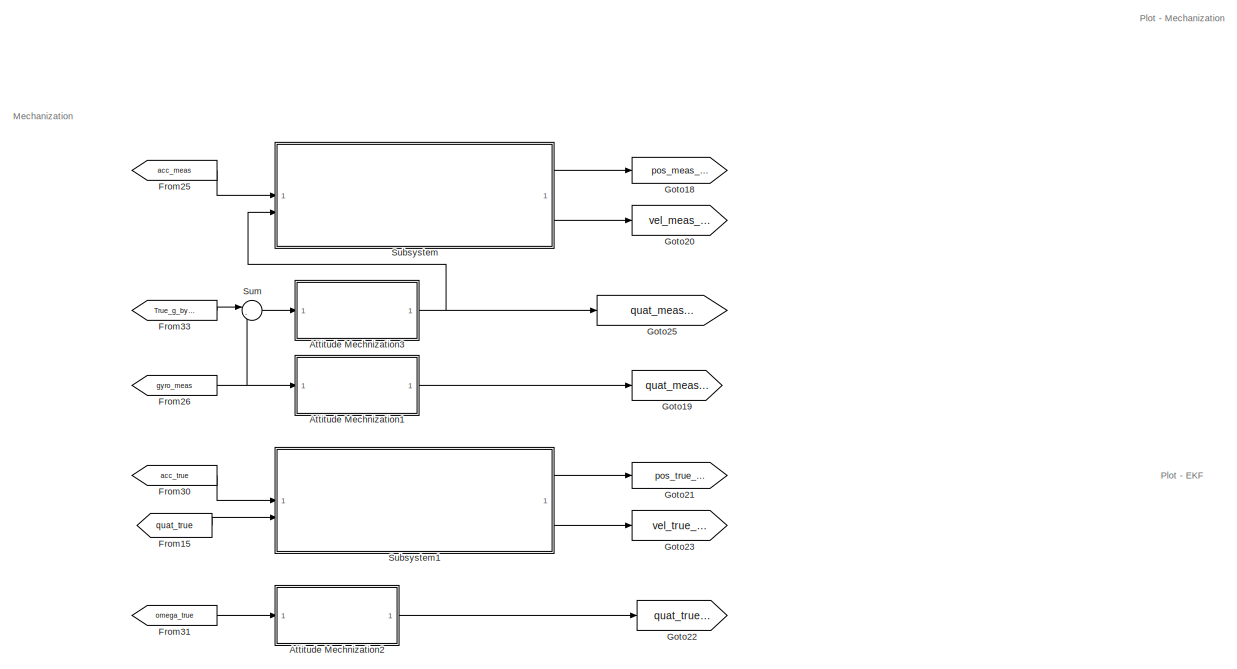
[diagram: root canvas - part 1/10, top center region]
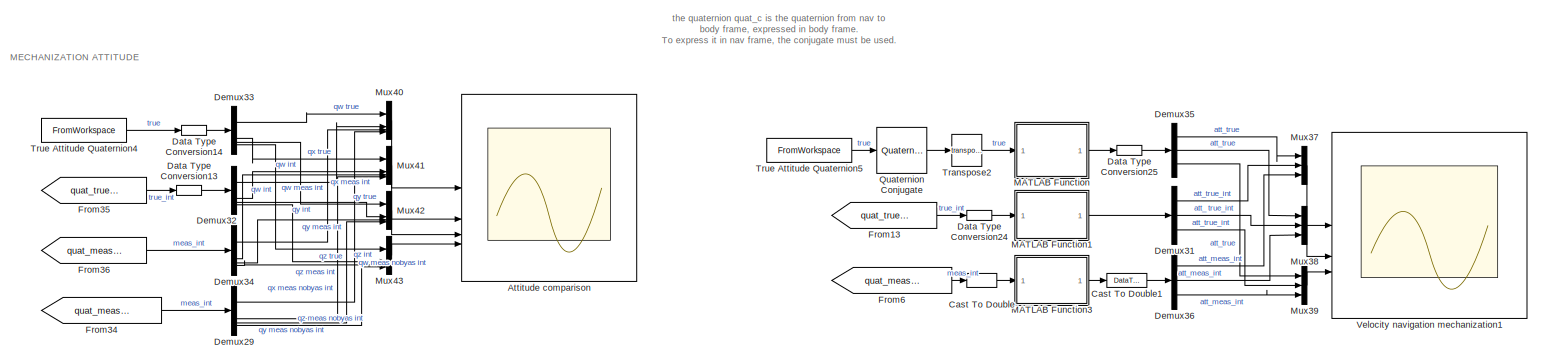
[diagram: root canvas - part 2/10, top right region]
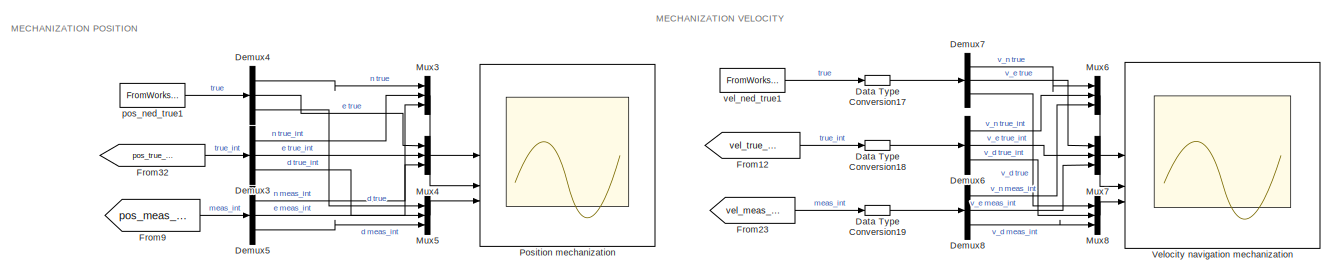
[diagram: root canvas - part 3/10, top center region]
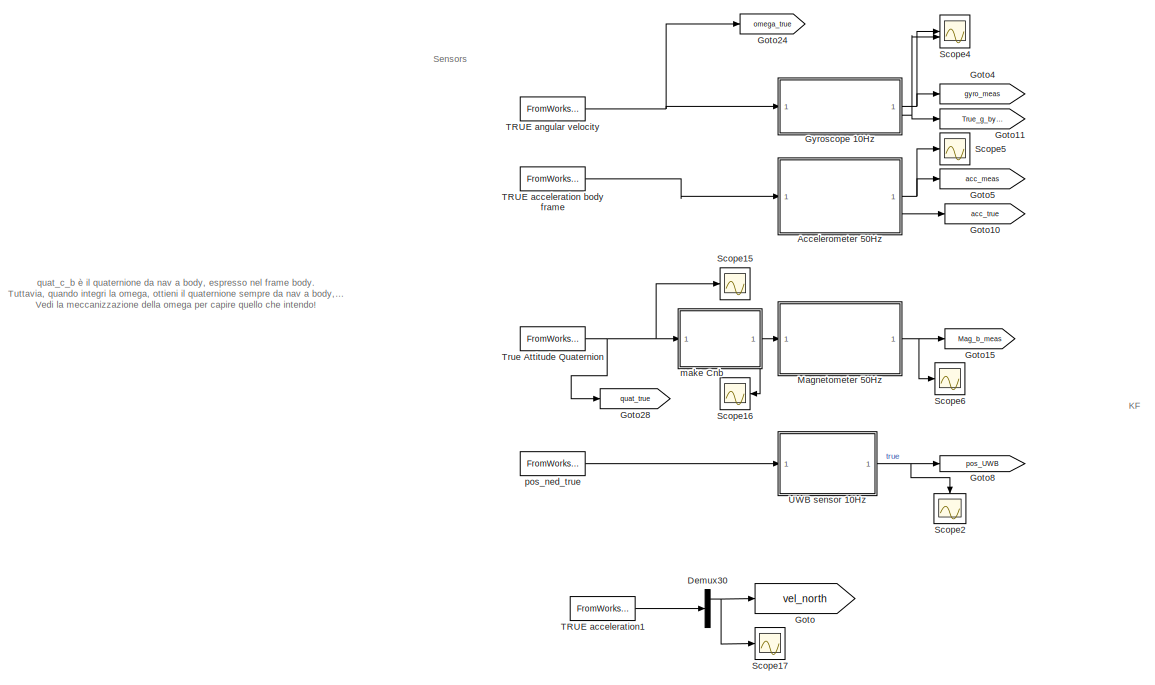
[diagram: root canvas - part 4/10, top left region]
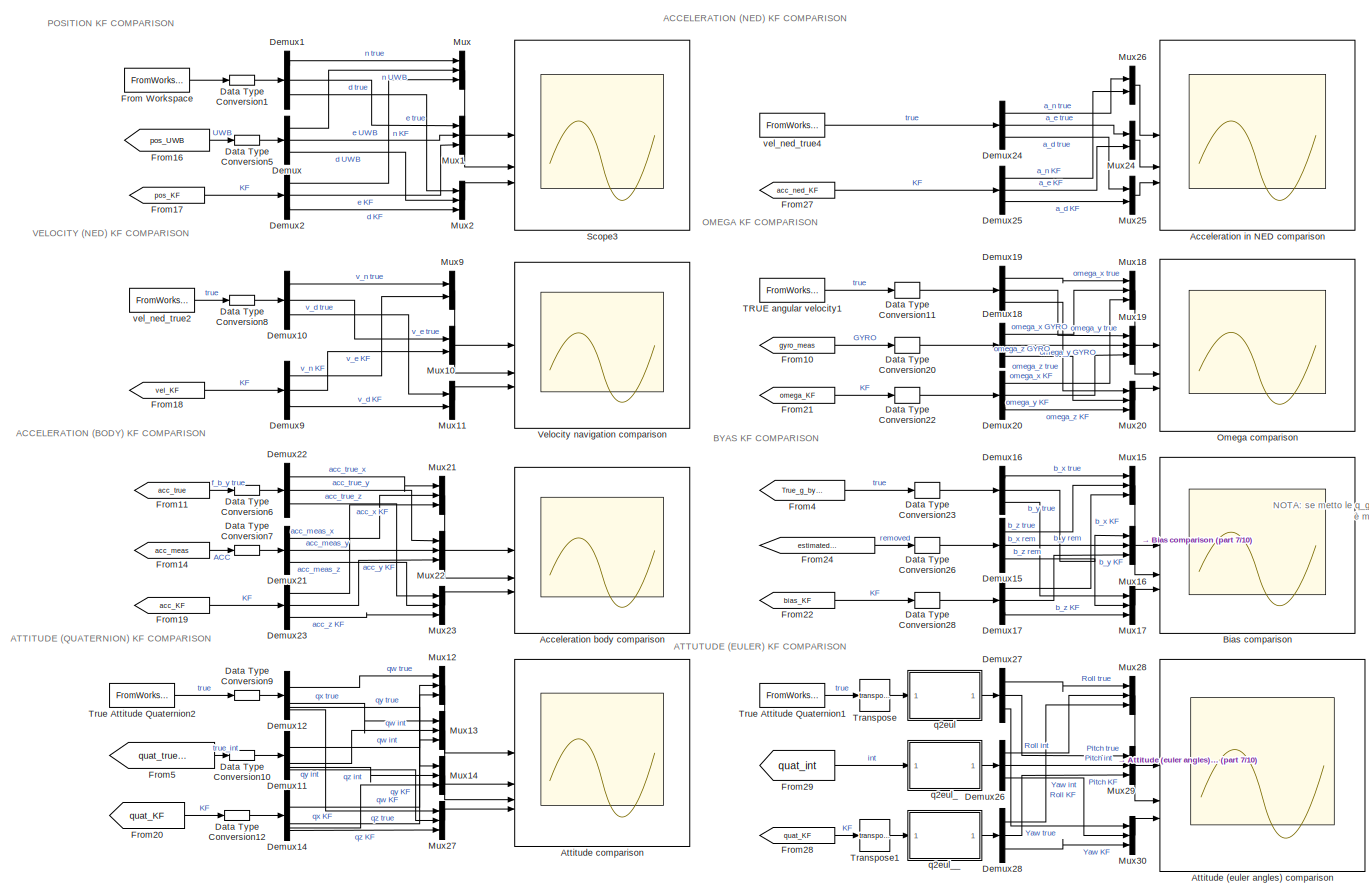
[diagram: root canvas - part 5/10, central region]
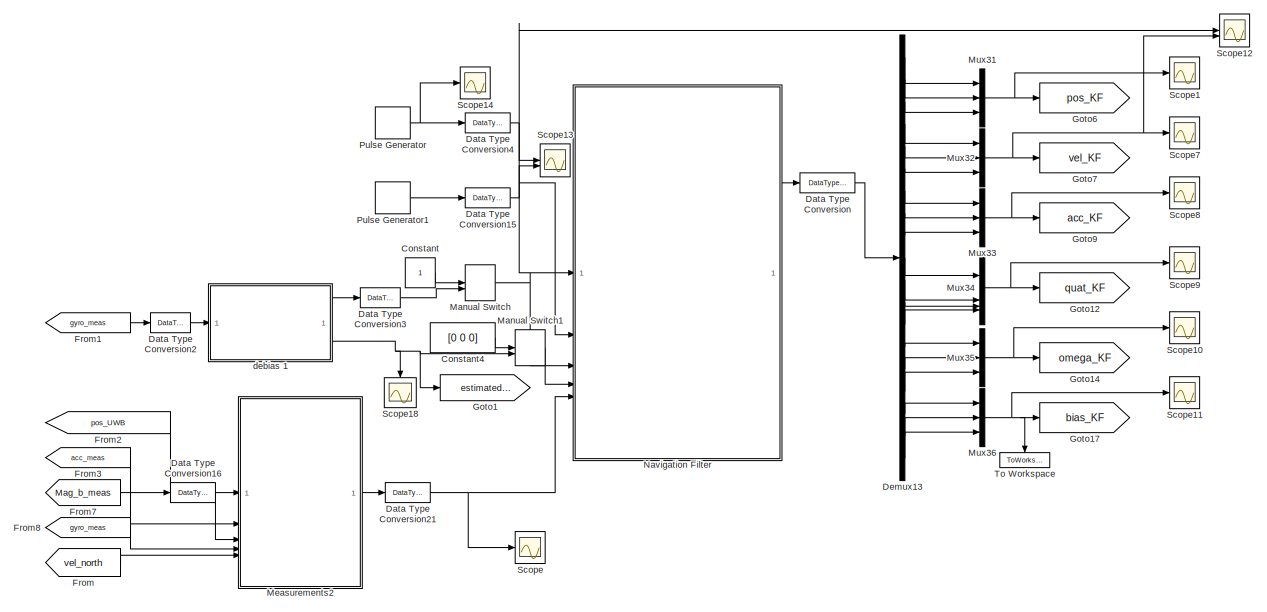
[diagram: root canvas - part 6/10, middle left region]
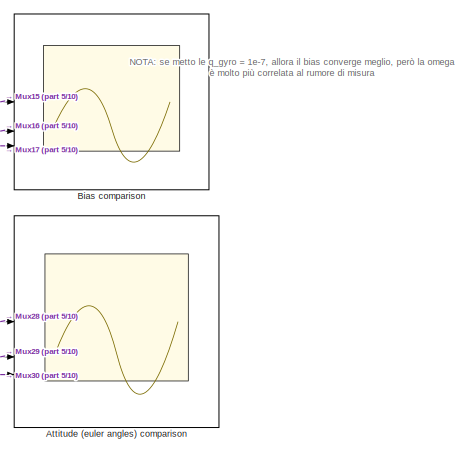
[diagram: root canvas - part 7/10, middle right region]
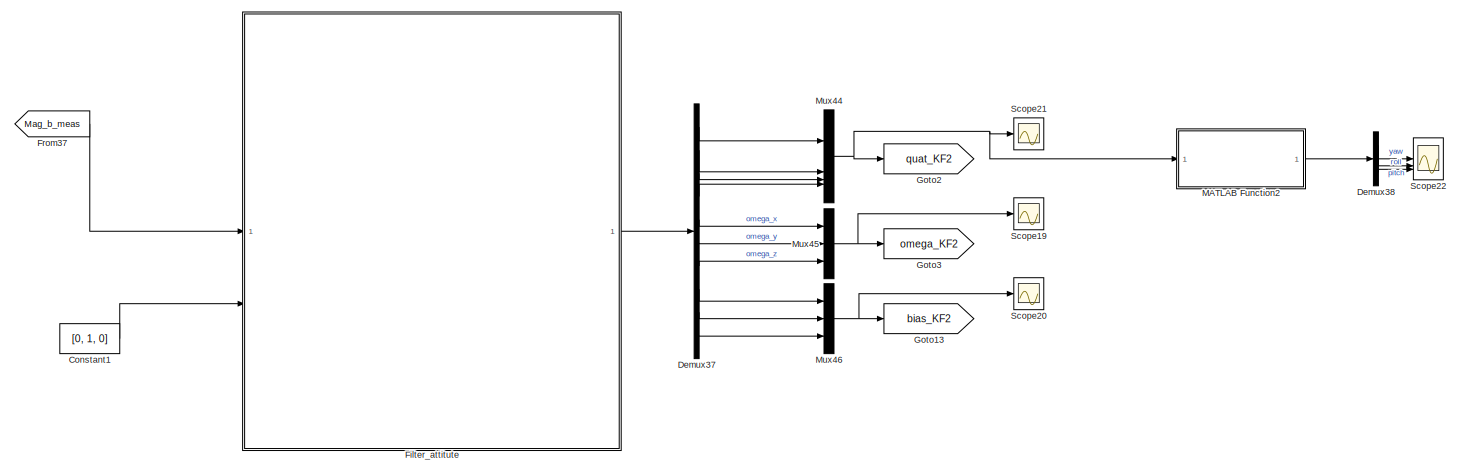
[diagram: root canvas - part 8/10, bottom center region]
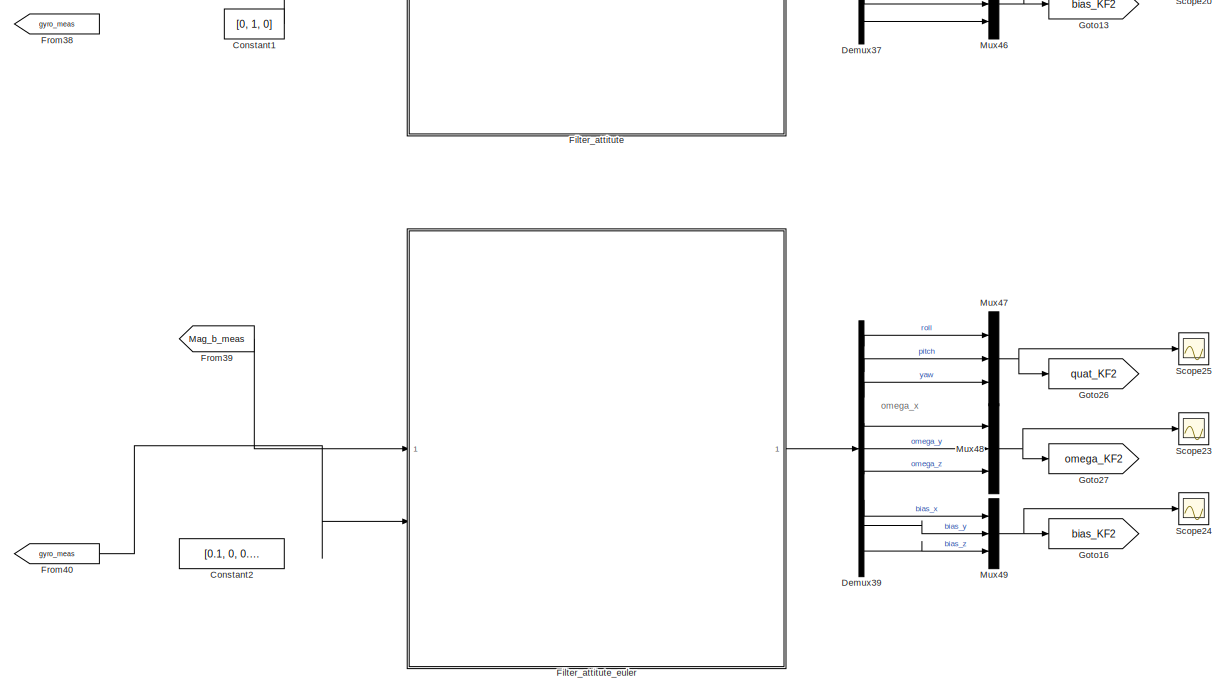
[diagram: root canvas - part 9/10, bottom center region]
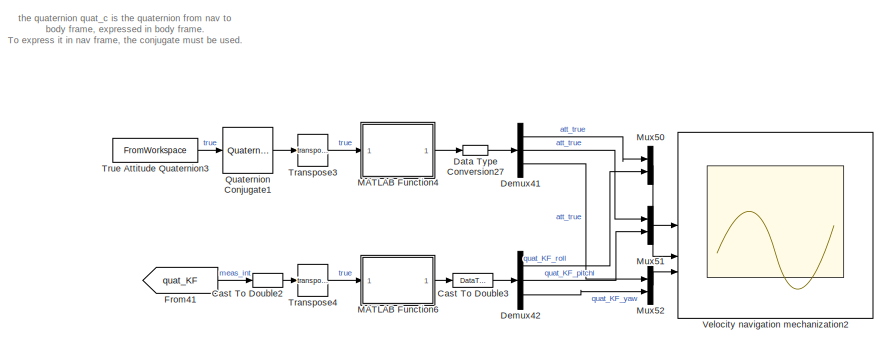
[diagram: root canvas - part 10/10, bottom center region]
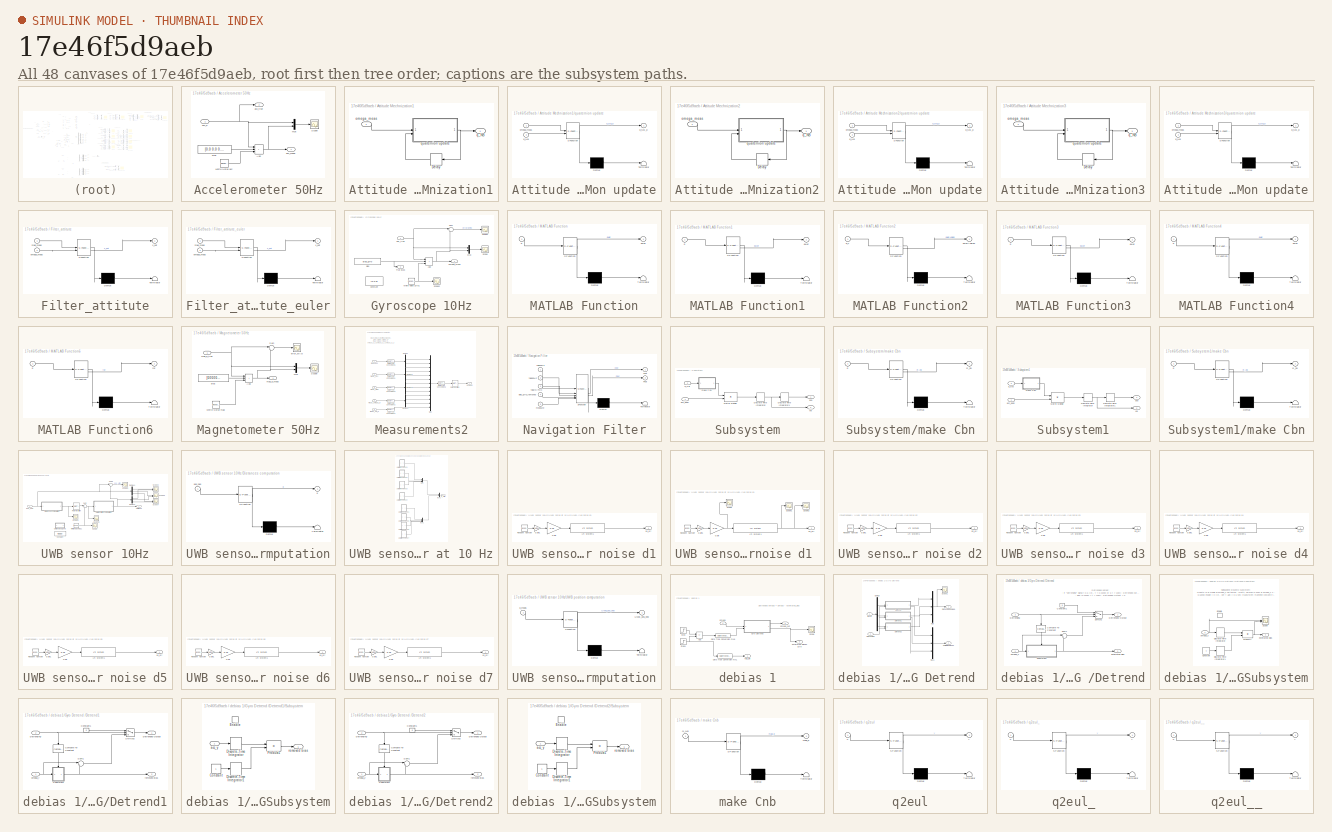
[diagram: thumbnail index - all 48 canvases of the model, root first then tree order]
MODEL slx_17e46f5d9aeb
KIND model
CONFIG AbsTol = auto
CONFIG EnableMultiTasking = off
CONFIG FixedStep = ST
CONFIG MaxStep = auto
CONFIG MinStep = auto
CONFIG RelTol = 1e-3
CONFIG SampleTimeConstraint = Unconstrained
CONFIG SolverName = FixedStepAuto
CONFIG StartTime = 0.0
CONFIG StopTime = 200.0
BLOCK [Scope] Acceleration body comparison
  Floating = off
  NumInputPorts = 3
  ScopeSpecificationString = Simulink.scopes.TimeScopeBlockCfg('CurrentConfiguration', extmgr.ConfigurationSet(extmgr.Configuration('Core','General UI',true),extmgr.Configuration('Core','Source UI',true),extmgr.Configuration('Sources','WiredSimulink',true,'DataLoggingVariableName','ScopeData1'),extmgr.Configuration('Visuals','Time Domain',true,'SerializedDisplays',{struct('MinYLimReal','-1.54278','MaxYLimReal','7.58137','YLab...<+3385ch>
BLOCK [Scope] Acceleration in NED comparison
  Commented = on
  Floating = off
  NumInputPorts = 3
  ScopeSpecificationString = Simulink.scopes.TimeScopeBlockCfg('CurrentConfiguration', extmgr.ConfigurationSet(extmgr.Configuration('Core','General UI',true),extmgr.Configuration('Core','Source UI',true),extmgr.Configuration('Sources','WiredSimulink',true,'DataLoggingVariableName','ScopeData2'),extmgr.Configuration('Visuals','Time Domain',true,'SerializedDisplays',{struct('MinYLimReal','-1.05375','MaxYLimReal','1.3737','YLabe...<+3337ch>
BLOCK [SubSystem] Accelerometer 50Hz
BLOCK [Sum] Accelerometer 50Hz/Add
  IconShape = rectangular
  Inputs = +++
BLOCK [Mux] Accelerometer 50Hz/Mux
  DisplayOption = bar
  Inputs = 2
BLOCK [Scope] Accelerometer 50Hz/Scope
  Floating = off
  NumInputPorts = 1
  ScopeSpecificationString = Simulink.scopes.TimeScopeBlockCfg('CurrentConfiguration', extmgr.ConfigurationSet(extmgr.Configuration('Core','General UI',true),extmgr.Configuration('Core','Source UI',true),extmgr.Configuration('Sources','WiredSimulink',true,'DataLoggingVariableName','ScopeData1'),extmgr.Configuration('Visuals','Time Domain',true,'SerializedDisplays',{struct('MinYLimReal','-10.57412','MaxYLimReal','-8.91153','YL...<+1584ch>
BLOCK [RandomNumber] Accelerometer 50Hz/White Noise acc
  DisableCoverage = on
  Mean = [0 0 0 ]
  SampleTime = 1/freq_acc
  Seed = [1, 2, 3]
  Variance = [std_dev_accx^2, std_dev_accy^2, std_dev_accz^2]
BLOCK [Inport] Accelerometer 50Hz/acc_b
BLOCK [Outport] Accelerometer 50Hz/acc_meas
BLOCK [Outport] Accelerometer 50Hz/acc_true
  Port = 2
BLOCK [Constant] Accelerometer 50Hz/bias
  Value = [0.0 0.0 0.0]
BLOCK [Scope] Attitude (euler angles) comparison
  Commented = on
  Floating = off
  NumInputPorts = 3
  ScopeSpecificationString = Simulink.scopes.TimeScopeBlockCfg('CurrentConfiguration', extmgr.ConfigurationSet(extmgr.Configuration('Core','General UI',true,'DisplayFullSourceName',true),extmgr.Configuration('Core','Source UI',true),extmgr.Configuration('Sources','WiredSimulink',true,'DataLoggingVariableName','ScopeData3'),extmgr.Configuration('Visuals','Time Domain',true,'SerializedDisplays',{struct('MinYLimReal','-224.99599...<+4511ch>
BLOCK [SubSystem] Attitude Mechnization1
BLOCK [Delay] Attitude Mechnization1/Delay
  DelayLength = 1
  InitialCondition = quat_c_b(1,:)
  InputPortMap = u0
BLOCK [Inport] Attitude Mechnization1/omega_meas
BLOCK [Outport] Attitude Mechnization1/q_NB
BLOCK [SubSystem] Attitude Mechnization1/quaternion update
  ErrorFcn = Stateflow.Translate.translate
  PermitHierarchicalResolution = ExplicitOnly
  SFBlockType = MATLAB Function
  TreatAsAtomicUnit = on
BLOCK [Demux] Attitude Mechnization1/quaternion update/ Demux 
  Outputs = 1
BLOCK [S-Function] Attitude Mechnization1/quaternion update/ SFunction 
  EnableBusSupport = on
  FunctionName = sf_sfun
  Parameters = ST
  PortCounts = [2 2]
  SFcnIsStateOwnerBlock = off
  SFunctionDeploymentMode = off
  Tag = Stateflow S-Function 5
BLOCK [Terminator] Attitude Mechnization1/quaternion update/ Terminator 
BLOCK [Inport] Attitude Mechnization1/quaternion update/omega_meas
BLOCK [Inport] Attitude Mechnization1/quaternion update/q_NB
  Port = 2
BLOCK [Outport] Attitude Mechnization1/quaternion update/q_NB_p
BLOCK [SubSystem] Attitude Mechnization2
BLOCK [Delay] Attitude Mechnization2/Delay
  DelayLength = 1
  InitialCondition = quat_c_b(1,:)
  InputPortMap = u0
BLOCK [Inport] Attitude Mechnization2/omega_meas
BLOCK [Outport] Attitude Mechnization2/q_NB
BLOCK [SubSystem] Attitude Mechnization2/quaternion update
  ErrorFcn = Stateflow.Translate.translate
  PermitHierarchicalResolution = ExplicitOnly
  SFBlockType = MATLAB Function
  TreatAsAtomicUnit = on
BLOCK [Demux] Attitude Mechnization2/quaternion update/ Demux 
  Outputs = 1
BLOCK [S-Function] Attitude Mechnization2/quaternion update/ SFunction 
  EnableBusSupport = on
  FunctionName = sf_sfun
  Parameters = ST
  PortCounts = [2 2]
  SFcnIsStateOwnerBlock = off
  SFunctionDeploymentMode = off
  Tag = Stateflow S-Function 7
BLOCK [Terminator] Attitude Mechnization2/quaternion update/ Terminator 
BLOCK [Inport] Attitude Mechnization2/quaternion update/omega_meas
BLOCK [Inport] Attitude Mechnization2/quaternion update/q_NB
  Port = 2
BLOCK [Outport] Attitude Mechnization2/quaternion update/q_NB_p
BLOCK [SubSystem] Attitude Mechnization3
BLOCK [Delay] Attitude Mechnization3/Delay
  DelayLength = 1
  InitialCondition = quat_c_b(1,:)
  InputPortMap = u0
BLOCK [Inport] Attitude Mechnization3/omega_meas
BLOCK [Outport] Attitude Mechnization3/q_NB
BLOCK [SubSystem] Attitude Mechnization3/quaternion update
  ErrorFcn = Stateflow.Translate.translate
  PermitHierarchicalResolution = ExplicitOnly
  SFBlockType = MATLAB Function
  TreatAsAtomicUnit = on
BLOCK [Demux] Attitude Mechnization3/quaternion update/ Demux 
  Outputs = 1
BLOCK [S-Function] Attitude Mechnization3/quaternion update/ SFunction 
  EnableBusSupport = on
  FunctionName = sf_sfun
  Parameters = ST
  PortCounts = [2 2]
  SFcnIsStateOwnerBlock = off
  SFunctionDeploymentMode = off
  Tag = Stateflow S-Function 6
BLOCK [Terminator] Attitude Mechnization3/quaternion update/ Terminator 
BLOCK [Inport] Attitude Mechnization3/quaternion update/omega_meas
BLOCK [Inport] Attitude Mechnization3/quaternion update/q_NB
  Port = 2
BLOCK [Outport] Attitude Mechnization3/quaternion update/q_NB_p
BLOCK [Scope] Attitude comparison 
  Floating = off
  NumInputPorts = 4
  ScopeSpecificationString = Simulink.scopes.TimeScopeBlockCfg('CurrentConfiguration', extmgr.ConfigurationSet(extmgr.Configuration('Core','General UI',true,'DisplayFullSourceName',true),extmgr.Configuration('Core','Source UI',true),extmgr.Configuration('Sources','WiredSimulink',true,'DataLoggingVariableName','ScopeData4'),extmgr.Configuration('Visuals','Time Domain',true,'SerializedDisplays',{struct('MinYLimReal','-0.14421',...<+4232ch>
BLOCK [Scope] Bias comparison
  Floating = off
  NumInputPorts = 3
  ScopeSpecificationString = Simulink.scopes.TimeScopeBlockCfg('CurrentConfiguration', extmgr.ConfigurationSet(extmgr.Configuration('Core','General UI',true),extmgr.Configuration('Core','Source UI',true),extmgr.Configuration('Sources','WiredSimulink',true,'DataLoggingVariableName','ScopeData5'),extmgr.Configuration('Visuals','Time Domain',true,'SerializedDisplays',{struct('MinYLimReal','-0.02665','MaxYLimReal','0.23984','YLab...<+4400ch>
BLOCK [DataTypeConversion] Cast To Double
  OutDataTypeStr = double
  RndMeth = Floor
  SaturateOnIntegerOverflow = off
BLOCK [DataTypeConversion] Cast To Double1
  OutDataTypeStr = double
  RndMeth = Floor
  SaturateOnIntegerOverflow = off
BLOCK [DataTypeConversion] Cast To Double2
  OutDataTypeStr = double
  RndMeth = Floor
  SaturateOnIntegerOverflow = off
BLOCK [DataTypeConversion] Cast To Double3
  OutDataTypeStr = double
  RndMeth = Floor
  SaturateOnIntegerOverflow = off
BLOCK [Constant] Constant
BLOCK [Constant] Constant1
  Commented = on
  Value = [0, 1, 0]
BLOCK [Constant] Constant2
  Commented = on
  Value = [0.1, 0, 0.1]
BLOCK [Constant] Constant4
  Value = [0 0 0]
BLOCK [DataTypeConversion] Data Type Conversion
  OutDataTypeStr = single
  RndMeth = Floor
  SaturateOnIntegerOverflow = off
BLOCK [DataTypeConversion] Data Type Conversion1
  OutDataTypeStr = single
  RndMeth = Floor
  SaturateOnIntegerOverflow = off
BLOCK [DataTypeConversion] Data Type Conversion10
  OutDataTypeStr = single
  RndMeth = Floor
  SaturateOnIntegerOverflow = off
BLOCK [DataTypeConversion] Data Type Conversion11
  OutDataTypeStr = single
  RndMeth = Floor
  SaturateOnIntegerOverflow = off
BLOCK [DataTypeConversion] Data Type Conversion12
  OutDataTypeStr = single
  RndMeth = Floor
  SaturateOnIntegerOverflow = off
BLOCK [DataTypeConversion] Data Type Conversion13
  OutDataTypeStr = single
  RndMeth = Floor
  SaturateOnIntegerOverflow = off
BLOCK [DataTypeConversion] Data Type Conversion14
  OutDataTypeStr = single
  RndMeth = Floor
  SaturateOnIntegerOverflow = off
BLOCK [DataTypeConversion] Data Type Conversion15
  OutDataTypeStr = single
  RndMeth = Floor
  SaturateOnIntegerOverflow = off
BLOCK [DataTypeConversion] Data Type Conversion16
  OutDataTypeStr = single
  RndMeth = Floor
  SaturateOnIntegerOverflow = off
BLOCK [DataTypeConversion] Data Type Conversion17
  OutDataTypeStr = single
  RndMeth = Floor
  SaturateOnIntegerOverflow = off
BLOCK [DataTypeConversion] Data Type Conversion18
  OutDataTypeStr = single
  RndMeth = Floor
  SaturateOnIntegerOverflow = off
BLOCK [DataTypeConversion] Data Type Conversion19
  OutDataTypeStr = single
  RndMeth = Floor
  SaturateOnIntegerOverflow = off
BLOCK [DataTypeConversion] Data Type Conversion2
  OutDataTypeStr = single
  RndMeth = Floor
  SaturateOnIntegerOverflow = off
BLOCK [DataTypeConversion] Data Type Conversion20
  OutDataTypeStr = single
  RndMeth = Floor
  SaturateOnIntegerOverflow = off
BLOCK [DataTypeConversion] Data Type Conversion21
  OutDataTypeStr = single
  RndMeth = Floor
  SaturateOnIntegerOverflow = off
BLOCK [DataTypeConversion] Data Type Conversion22
  OutDataTypeStr = single
  RndMeth = Floor
  SaturateOnIntegerOverflow = off
BLOCK [DataTypeConversion] Data Type Conversion23
  OutDataTypeStr = single
  RndMeth = Floor
  SaturateOnIntegerOverflow = off
BLOCK [DataTypeConversion] Data Type Conversion24
  Commented = through
  OutDataTypeStr = single
  RndMeth = Floor
  SaturateOnIntegerOverflow = off
BLOCK [DataTypeConversion] Data Type Conversion25
  Commented = through
  OutDataTypeStr = single
  RndMeth = Floor
  SaturateOnIntegerOverflow = off
BLOCK [DataTypeConversion] Data Type Conversion26
  OutDataTypeStr = single
  RndMeth = Floor
  SaturateOnIntegerOverflow = off
BLOCK [DataTypeConversion] Data Type Conversion27
  Commented = through
  OutDataTypeStr = single
  RndMeth = Floor
  SaturateOnIntegerOverflow = off
BLOCK [DataTypeConversion] Data Type Conversion28
  OutDataTypeStr = single
  RndMeth = Floor
  SaturateOnIntegerOverflow = off
BLOCK [DataTypeConversion] Data Type Conversion3
  OutDataTypeStr = single
  RndMeth = Floor
  SaturateOnIntegerOverflow = off
BLOCK [DataTypeConversion] Data Type Conversion4
  OutDataTypeStr = single
  RndMeth = Floor
  SaturateOnIntegerOverflow = off
BLOCK [DataTypeConversion] Data Type Conversion5
  OutDataTypeStr = single
  RndMeth = Floor
  SaturateOnIntegerOverflow = off
BLOCK [DataTypeConversion] Data Type Conversion6
  OutDataTypeStr = single
  RndMeth = Floor
  SaturateOnIntegerOverflow = off
BLOCK [DataTypeConversion] Data Type Conversion7
  OutDataTypeStr = single
  RndMeth = Floor
  SaturateOnIntegerOverflow = off
BLOCK [DataTypeConversion] Data Type Conversion8
  OutDataTypeStr = single
  RndMeth = Floor
  SaturateOnIntegerOverflow = off
BLOCK [DataTypeConversion] Data Type Conversion9
  OutDataTypeStr = single
  RndMeth = Floor
  SaturateOnIntegerOverflow = off
BLOCK [Demux] Demux
  Outputs = 3
BLOCK [Demux] Demux1
  Outputs = 3
BLOCK [Demux] Demux10
  Outputs = 3
BLOCK [Demux] Demux11
BLOCK [Demux] Demux12
BLOCK [Demux] Demux13
  Outputs = 19
BLOCK [Demux] Demux14
BLOCK [Demux] Demux15
  Outputs = 3
BLOCK [Demux] Demux16
  Outputs = 3
BLOCK [Demux] Demux17
  Outputs = 3
BLOCK [Demux] Demux18
  Outputs = 3
BLOCK [Demux] Demux19
  Outputs = 3
BLOCK [Demux] Demux2
  Outputs = 3
BLOCK [Demux] Demux20
  Outputs = 3
BLOCK [Demux] Demux21
  Outputs = 3
BLOCK [Demux] Demux22
  Outputs = 3
BLOCK [Demux] Demux23
  Outputs = 3
BLOCK [Demux] Demux24
  Commented = on
  Outputs = 3
BLOCK [Demux] Demux25
  Commented = on
  Outputs = 3
BLOCK [Demux] Demux26
  Commented = on
  Outputs = 3
BLOCK [Demux] Demux27
  Commented = on
  Outputs = 3
BLOCK [Demux] Demux28
  Commented = on
  Outputs = 3
BLOCK [Demux] Demux29
BLOCK [Demux] Demux3
  Outputs = 3
BLOCK [Demux] Demux30
  Outputs = 3
BLOCK [Demux] Demux31
  Outputs = 3
BLOCK [Demux] Demux32
BLOCK [Demux] Demux33
BLOCK [Demux] Demux34
BLOCK [Demux] Demux35
  Outputs = 3
BLOCK [Demux] Demux36
  Outputs = 3
BLOCK [Demux] Demux37
  Commented = on
  Outputs = 10
BLOCK [Demux] Demux38
  Commented = on
  Outputs = 3
BLOCK [Demux] Demux39
  Commented = on
  Outputs = 9
BLOCK [Demux] Demux4
  Outputs = 3
BLOCK [Demux] Demux41
  Outputs = 3
BLOCK [Demux] Demux42
  Outputs = 3
BLOCK [Demux] Demux5
  Outputs = 3
BLOCK [Demux] Demux6
  Outputs = 3
BLOCK [Demux] Demux7
  Outputs = 3
BLOCK [Demux] Demux8
  Outputs = 3
BLOCK [Demux] Demux9
  Outputs = 3
BLOCK [SubSystem] Filter_attitute
  Commented = on
  ErrorFcn = Stateflow.Translate.translate
  PermitHierarchicalResolution = ExplicitOnly
  SFBlockType = MATLAB Function
  TreatAsAtomicUnit = on
BLOCK [Demux] Filter_attitute/ Demux 
  Outputs = 1
BLOCK [S-Function] Filter_attitute/ SFunction 
  EnableBusSupport = on
  FunctionName = sf_sfun
  Parameters = Q,dt
  PortCounts = [2 2]
  SFcnIsStateOwnerBlock = off
  SFunctionDeploymentMode = off
  Tag = Stateflow S-Function 14
BLOCK [Terminator] Filter_attitute/ Terminator 
BLOCK [Inport] Filter_attitute/mag_meas
BLOCK [Inport] Filter_attitute/omega_meas
  Port = 2
BLOCK [Outport] Filter_attitute/x_out
BLOCK [SubSystem] Filter_attitute_euler
  Commented = on
  ErrorFcn = Stateflow.Translate.translate
  PermitHierarchicalResolution = ExplicitOnly
  SFBlockType = MATLAB Function
  TreatAsAtomicUnit = on
BLOCK [Demux] Filter_attitute_euler/ Demux 
  Outputs = 1
BLOCK [S-Function] Filter_attitute_euler/ SFunction 
  EnableBusSupport = on
  FunctionName = sf_sfun
  Parameters = Q_att,dt,sensor_covariances
  PortCounts = [2 2]
  SFcnIsStateOwnerBlock = off
  SFunctionDeploymentMode = off
  Tag = Stateflow S-Function 18
BLOCK [Terminator] Filter_attitute_euler/ Terminator 
BLOCK [Inport] Filter_attitute_euler/mag_meas
BLOCK [Inport] Filter_attitute_euler/omega_meas
  Port = 2
BLOCK [Outport] Filter_attitute_euler/x_out
BLOCK [From] From
  GotoTag = vel_north
BLOCK [FromWorkspace] From Workspace
  VariableName = [time pos_ned]
BLOCK [From] From1
  GotoTag = gyro_meas
  TagVisibility = global
BLOCK [From] From10
  GotoTag = gyro_meas
  TagVisibility = global
BLOCK [From] From11
  GotoTag = acc_true
BLOCK [From] From12
  GotoTag = vel_true_int
BLOCK [From] From13
  GotoTag = quat_true_int
  TagVisibility = global
BLOCK [From] From14
  GotoTag = acc_meas
BLOCK [From] From15
  GotoTag = quat_true
BLOCK [From] From16
  GotoTag = pos_UWB
BLOCK [From] From17
  GotoTag = pos_KF
BLOCK [From] From18
  GotoTag = vel_KF
BLOCK [From] From19
  GotoTag = acc_KF
BLOCK [From] From2
  GotoTag = pos_UWB
BLOCK [From] From20
  GotoTag = quat_KF
BLOCK [From] From21
  GotoTag = omega_KF
BLOCK [From] From22
  GotoTag = bias_KF
BLOCK [From] From23
  GotoTag = vel_meas_int
  NameLocation = top
BLOCK [From] From24
  GotoTag = estimated_bias
  NameLocation = top
BLOCK [From] From25
  GotoTag = acc_meas
BLOCK [From] From26
  GotoTag = gyro_meas
  TagVisibility = global
BLOCK [From] From27
  Commented = on
  GotoTag = acc_ned_KF
BLOCK [From] From28
  Commented = on
  GotoTag = quat_KF
BLOCK [From] From29
  Commented = on
  GotoTag = quat_int
BLOCK [From] From3
  GotoTag = acc_meas
BLOCK [From] From30
  GotoTag = acc_true
BLOCK [From] From31
  GotoTag = omega_true
  TagVisibility = global
BLOCK [From] From32
  GotoTag = pos_true_int
BLOCK [From] From33
  GotoTag = True_g_byas
  TagVisibility = global
BLOCK [From] From34
  GotoTag = quat_meas_nobyas_int
  NameLocation = top
BLOCK [From] From35
  GotoTag = quat_true_int
  TagVisibility = global
BLOCK [From] From36
  GotoTag = quat_meas_int
  NameLocation = top
BLOCK [From] From37
  Commented = on
  GotoTag = Mag_b_meas
BLOCK [From] From38
  Commented = on
  GotoTag = gyro_meas
BLOCK [From] From39
  Commented = on
  GotoTag = Mag_b_meas
BLOCK [From] From4
  GotoTag = True_g_byas
  TagVisibility = global
BLOCK [From] From40
  Commented = on
  GotoTag = gyro_meas
BLOCK [From] From41
  GotoTag = quat_KF
BLOCK [From] From5
  GotoTag = quat_true_int
  TagVisibility = global
BLOCK [From] From6
  GotoTag = quat_meas_nobyas_int
  NameLocation = top
BLOCK [From] From7
  GotoTag = Mag_b_meas
BLOCK [From] From8
  GotoTag = gyro_meas
  TagVisibility = global
BLOCK [From] From9
  GotoTag = pos_meas_int
BLOCK [Goto] Goto
  GotoTag = vel_north
BLOCK [Goto] Goto1
  GotoTag = estimated_bias
BLOCK [Goto] Goto10
  GotoTag = acc_true
BLOCK [Goto] Goto11
  GotoTag = True_g_byas
  TagVisibility = global
BLOCK [Goto] Goto12
  GotoTag = quat_KF
BLOCK [Goto] Goto13
  Commented = on
  GotoTag = bias_KF2
BLOCK [Goto] Goto14
  GotoTag = omega_KF
BLOCK [Goto] Goto15
  GotoTag = Mag_b_meas
BLOCK [Goto] Goto16
  Commented = on
  GotoTag = bias_KF2
BLOCK [Goto] Goto17
  GotoTag = bias_KF
BLOCK [Goto] Goto18
  GotoTag = pos_meas_int
BLOCK [Goto] Goto19
  GotoTag = quat_meas_int
BLOCK [Goto] Goto2
  Commented = on
  GotoTag = quat_KF2
BLOCK [Goto] Goto20
  GotoTag = vel_meas_int
BLOCK [Goto] Goto21
  GotoTag = pos_true_int
BLOCK [Goto] Goto22
  GotoTag = quat_true_int
  TagVisibility = global
BLOCK [Goto] Goto23
  GotoTag = vel_true_int
BLOCK [Goto] Goto24
  GotoTag = omega_true
  TagVisibility = global
BLOCK [Goto] Goto25
  GotoTag = quat_meas_nobyas_int
BLOCK [Goto] Goto26
  Commented = on
  GotoTag = quat_KF2
BLOCK [Goto] Goto27
  Commented = on
  GotoTag = omega_KF2
BLOCK [Goto] Goto28
  GotoTag = quat_true
BLOCK [Goto] Goto3
  Commented = on
  GotoTag = omega_KF2
BLOCK [Goto] Goto4
  GotoTag = gyro_meas
  TagVisibility = global
BLOCK [Goto] Goto5
  GotoTag = acc_meas
BLOCK [Goto] Goto6
  GotoTag = pos_KF
BLOCK [Goto] Goto7
  GotoTag = vel_KF
BLOCK [Goto] Goto8
  GotoTag = pos_UWB
BLOCK [Goto] Goto9
  GotoTag = acc_KF
BLOCK [SubSystem] Gyroscope 10Hz
BLOCK [Sum] Gyroscope 10Hz/Add
  IconShape = rectangular
  Inputs = +++
BLOCK [Constant] Gyroscope 10Hz/Constant
  Value = [0 0 0]
BLOCK [Mux] Gyroscope 10Hz/Mux
  DisplayOption = bar
  Inputs = 2
BLOCK [Scope] Gyroscope 10Hz/Scope
  Floating = off
  NumInputPorts = 1
  ScopeSpecificationString = Simulink.scopes.TimeScopeBlockCfg('CurrentConfiguration', extmgr.ConfigurationSet(extmgr.Configuration('Core','General UI',true),extmgr.Configuration('Core','Source UI',true),extmgr.Configuration('Sources','WiredSimulink',true,'DataLoggingVariableName','ScopeData2'),extmgr.Configuration('Visuals','Time Domain',true,'SerializedDisplays',{struct('MinYLimReal','-0.1418','MaxYLimReal','0.20182','YLabe...<+1843ch>
BLOCK [Scope] Gyroscope 10Hz/Scope1
  Floating = off
  NumInputPorts = 1
  ScopeSpecificationString = Simulink.scopes.TimeScopeBlockCfg('CurrentConfiguration', extmgr.ConfigurationSet(extmgr.Configuration('Core','General UI',true),extmgr.Configuration('Core','Source UI',true),extmgr.Configuration('Sources','WiredSimulink',true,'DataLoggingVariableName','ScopeData23'),extmgr.Configuration('Visuals','Time Domain',true,'SerializedDisplays',{struct('MinYLimReal','-0.00483','MaxYLimReal','0.02585','YLa...<+1491ch>
BLOCK [Scope] Gyroscope 10Hz/Scope2
  Floating = off
  NumInputPorts = 1
  ScopeSpecificationString = Simulink.scopes.TimeScopeBlockCfg('CurrentConfiguration', extmgr.ConfigurationSet(extmgr.Configuration('Core','General UI',true),extmgr.Configuration('Core','Source UI',true),extmgr.Configuration('Sources','WiredSimulink',true,'DataLoggingVariableName','ScopeData6'),extmgr.Configuration('Visuals','Time Domain',true,'SerializedDisplays',{struct('MinYLimReal','-0.0134','MaxYLimReal','0.01406','YLabe...<+1539ch>
BLOCK [Sum] Gyroscope 10Hz/Sum
  Inputs = |-+
BLOCK [Outport] Gyroscope 10Hz/True Byas
  Port = 2
BLOCK [RandomNumber] Gyroscope 10Hz/White Noise gyro1
  DisableCoverage = on
  Mean = [0 0 0]
  SampleTime = 1/freq_gyro
  Seed = [4 5 6]
  Variance = [std_dev_gyro1,std_dev_gyro2,std_dev_gyro3]
BLOCK [Constant] Gyroscope 10Hz/bias
  SampleTime = ST
  Value = bias_gyro
BLOCK [Outport] Gyroscope 10Hz/omega_meas
BLOCK [Inport] Gyroscope 10Hz/pqr_true
BLOCK [SubSystem] MATLAB Function
  ErrorFcn = Stateflow.Translate.translate
  PermitHierarchicalResolution = ExplicitOnly
  SFBlockType = MATLAB Function
  TreatAsAtomicUnit = on
BLOCK [Demux] MATLAB Function/ Demux 
  Outputs = 1
BLOCK [S-Function] MATLAB Function/ SFunction 
  EnableBusSupport = on
  FunctionName = sf_sfun
  PortCounts = [1 2]
  SFcnIsStateOwnerBlock = off
  SFunctionDeploymentMode = off
  Tag = Stateflow S-Function 9
BLOCK [Terminator] MATLAB Function/ Terminator 
BLOCK [Outport] MATLAB Function/euler
BLOCK [Inport] MATLAB Function/q
BLOCK [SubSystem] MATLAB Function1
  ErrorFcn = Stateflow.Translate.translate
  PermitHierarchicalResolution = ExplicitOnly
  SFBlockType = MATLAB Function
  TreatAsAtomicUnit = on
BLOCK [Demux] MATLAB Function1/ Demux 
  Outputs = 1
BLOCK [S-Function] MATLAB Function1/ SFunction 
  EnableBusSupport = on
  FunctionName = sf_sfun
  PortCounts = [1 2]
  SFcnIsStateOwnerBlock = off
  SFunctionDeploymentMode = off
  Tag = Stateflow S-Function 13
BLOCK [Terminator] MATLAB Function1/ Terminator 
BLOCK [Outport] MATLAB Function1/euler
BLOCK [Inport] MATLAB Function1/q
BLOCK [SubSystem] MATLAB Function2
  Commented = on
  ErrorFcn = Stateflow.Translate.translate
  PermitHierarchicalResolution = ExplicitOnly
  SFBlockType = MATLAB Function
  TreatAsAtomicUnit = on
BLOCK [Demux] MATLAB Function2/ Demux 
  Outputs = 1
BLOCK [S-Function] MATLAB Function2/ SFunction 
  EnableBusSupport = on
  FunctionName = sf_sfun
  PortCounts = [1 2]
  SFcnIsStateOwnerBlock = off
  SFunctionDeploymentMode = off
  Tag = Stateflow S-Function 16
BLOCK [Terminator] MATLAB Function2/ Terminator 
BLOCK [Outport] MATLAB Function2/eulerAngles
BLOCK [Inport] MATLAB Function2/q_c
BLOCK [SubSystem] MATLAB Function3
  ErrorFcn = Stateflow.Translate.translate
  PermitHierarchicalResolution = ExplicitOnly
  SFBlockType = MATLAB Function
  TreatAsAtomicUnit = on
BLOCK [Demux] MATLAB Function3/ Demux 
  Outputs = 1
BLOCK [S-Function] MATLAB Function3/ SFunction 
  EnableBusSupport = on
  FunctionName = sf_sfun
  PortCounts = [1 2]
  SFcnIsStateOwnerBlock = off
  SFunctionDeploymentMode = off
  Tag = Stateflow S-Function 15
BLOCK [Terminator] MATLAB Function3/ Terminator 
BLOCK [Outport] MATLAB Function3/euler
BLOCK [Inport] MATLAB Function3/q
BLOCK [SubSystem] MATLAB Function4
  ErrorFcn = Stateflow.Translate.translate
  PermitHierarchicalResolution = ExplicitOnly
  SFBlockType = MATLAB Function
  TreatAsAtomicUnit = on
BLOCK [Demux] MATLAB Function4/ Demux 
  Outputs = 1
BLOCK [S-Function] MATLAB Function4/ SFunction 
  EnableBusSupport = on
  FunctionName = sf_sfun
  PortCounts = [1 2]
  SFcnIsStateOwnerBlock = off
  SFunctionDeploymentMode = off
  Tag = Stateflow S-Function 19
BLOCK [Terminator] MATLAB Function4/ Terminator 
BLOCK [Outport] MATLAB Function4/euler
BLOCK [Inport] MATLAB Function4/q
BLOCK [SubSystem] MATLAB Function6
  ErrorFcn = Stateflow.Translate.translate
  PermitHierarchicalResolution = ExplicitOnly
  SFBlockType = MATLAB Function
  TreatAsAtomicUnit = on
BLOCK [Demux] MATLAB Function6/ Demux 
  Outputs = 1
BLOCK [S-Function] MATLAB Function6/ SFunction 
  EnableBusSupport = on
  FunctionName = sf_sfun
  PortCounts = [1 2]
  SFcnIsStateOwnerBlock = off
  SFunctionDeploymentMode = off
  Tag = Stateflow S-Function 22
BLOCK [Terminator] MATLAB Function6/ Terminator 
BLOCK [Inport] MATLAB Function6/q
BLOCK [Outport] MATLAB Function6/rpy
BLOCK [SubSystem] Magnetometer 50Hz
BLOCK [Sum] Magnetometer 50Hz/Add
  IconShape = rectangular
  Inputs = +++
BLOCK [Mux] Magnetometer 50Hz/Mux
  DisplayOption = bar
  Inputs = 2
BLOCK [Scope] Magnetometer 50Hz/Scope
  Floating = off
  NumInputPorts = 1
  ScopeSpecificationString = Simulink.scopes.TimeScopeBlockCfg('CurrentConfiguration', extmgr.ConfigurationSet(extmgr.Configuration('Core','General UI',true),extmgr.Configuration('Core','Source UI',true),extmgr.Configuration('Sources','WiredSimulink',true,'DataLoggingVariableName','ScopeData2'),extmgr.Configuration('Visuals','Time Domain',true,'SerializedDisplays',{struct('MinYLimReal','-1.59373','MaxYLimReal','1.82408','YLab...<+1732ch>
BLOCK [Sum] Magnetometer 50Hz/Sum
  Inputs = |-+
BLOCK [RandomNumber] Magnetometer 50Hz/White Noise mag
  DisableCoverage = on
  Mean = [0 0 0]
  SampleTime = Tf
  Seed = [7 8 9]
  Variance = [std_dev_magx^2, std_dev_magy^2, std_dev_magz^2]
BLOCK [Constant] Magnetometer 50Hz/bias
  Value = [0.0 0.0 0.0]
BLOCK [Scope] Magnetometer 50Hz/error_MAG
  Floating = off
  NumInputPorts = 1
  ScopeSpecificationString = Simulink.scopes.TimeScopeBlockCfg('CurrentConfiguration', extmgr.ConfigurationSet(extmgr.Configuration('Core','General UI',true),extmgr.Configuration('Core','Source UI',true),extmgr.Configuration('Sources','WiredSimulink',true,'DataLoggingVariableName','ScopeData24'),extmgr.Configuration('Visuals','Time Domain',true,'SerializedDisplays',{struct('MinYLimReal','-0.16656','MaxYLimReal','0.1513','YLab...<+1468ch>
BLOCK [Outport] Magnetometer 50Hz/mag_b_meas
BLOCK [Inport] Magnetometer 50Hz/mag_b_true
BLOCK [ManualSwitch] Manual Switch
BLOCK [ManualSwitch] Manual Switch1
BLOCK [SubSystem] Measurements2
BLOCK [DataTypeConversion] Measurements2/Data Type Conversion1
  OutDataTypeStr = single
  RndMeth = Floor
  SaturateOnIntegerOverflow = off
BLOCK [DataTypeConversion] Measurements2/Data Type Conversion2
  OutDataTypeStr = single
  RndMeth = Floor
  SaturateOnIntegerOverflow = off
BLOCK [DataTypeConversion] Measurements2/Data Type Conversion3
  OutDataTypeStr = single
  RndMeth = Floor
  SaturateOnIntegerOverflow = off
BLOCK [DataTypeConversion] Measurements2/Data Type Conversion4
  OutDataTypeStr = single
  RndMeth = Floor
  SaturateOnIntegerOverflow = off
BLOCK [DataTypeConversion] Measurements2/Data Type Conversion5
  OutDataTypeStr = single
  RndMeth = Floor
  SaturateOnIntegerOverflow = off
BLOCK [DataTypeConversion] Measurements2/Data Type Conversion6
  Commented = through
  OutDataTypeStr = single
  RndMeth = Floor
  SaturateOnIntegerOverflow = off
BLOCK [Demux] Measurements2/Demux
  Outputs = 3
BLOCK [Demux] Measurements2/Demux1
  Outputs = 3
BLOCK [Demux] Measurements2/Demux2
  Outputs = 3
BLOCK [Demux] Measurements2/Demux3
  Outputs = 3
BLOCK [Outport] Measurements2/KF meas
BLOCK [Mux] Measurements2/Mux
  DisplayOption = bar
  Inputs = 13
BLOCK [RateTransition] Measurements2/Rate Transition
  OutPortSampleTime = 1/50
BLOCK [Inport] Measurements2/meas pos 
BLOCK [Inport] Measurements2/meas_acc
  Port = 2
BLOCK [Inport] Measurements2/meas_mag
  Port = 3
BLOCK [Inport] Measurements2/meas_omega_b
  Port = 4
BLOCK [Inport] Measurements2/meas_vel_n
  Port = 5
BLOCK [Mux] Mux
  DisplayOption = bar
  Inputs = 3
BLOCK [Mux] Mux1
  DisplayOption = bar
  Inputs = 3
BLOCK [Mux] Mux10
  DisplayOption = bar
  Inputs = 2
BLOCK [Mux] Mux11
  DisplayOption = bar
  Inputs = 2
BLOCK [Mux] Mux12
  DisplayOption = bar
  Inputs = 3
BLOCK [Mux] Mux13
  DisplayOption = bar
  Inputs = 3
BLOCK [Mux] Mux14
  DisplayOption = bar
  Inputs = 3
BLOCK [Mux] Mux15
  DisplayOption = bar
  Inputs = 3
BLOCK [Mux] Mux16
  DisplayOption = bar
  Inputs = 3
BLOCK [Mux] Mux17
  DisplayOption = bar
  Inputs = 3
BLOCK [Mux] Mux18
  DisplayOption = bar
  Inputs = 3
BLOCK [Mux] Mux19
  DisplayOption = bar
  Inputs = 3
BLOCK [Mux] Mux2
  DisplayOption = bar
  Inputs = 3
BLOCK [Mux] Mux20
  DisplayOption = bar
  Inputs = 3
BLOCK [Mux] Mux21
  DisplayOption = bar
  Inputs = 3
BLOCK [Mux] Mux22
  DisplayOption = bar
  Inputs = 3
BLOCK [Mux] Mux23
  DisplayOption = bar
  Inputs = 3
BLOCK [Mux] Mux24
  Commented = on
  DisplayOption = bar
  Inputs = 2
BLOCK [Mux] Mux25
  Commented = on
  DisplayOption = bar
  Inputs = 2
BLOCK [Mux] Mux26
  Commented = on
  DisplayOption = bar
  Inputs = 2
BLOCK [Mux] Mux27
  DisplayOption = bar
  Inputs = 3
BLOCK [Mux] Mux28
  Commented = on
  DisplayOption = bar
  Inputs = 3
BLOCK [Mux] Mux29
  Commented = on
  DisplayOption = bar
  Inputs = 3
BLOCK [Mux] Mux3
  DisplayOption = bar
  Inputs = 3
BLOCK [Mux] Mux30
  Commented = on
  DisplayOption = bar
  Inputs = 3
BLOCK [Mux] Mux31
  DisplayOption = bar
  Inputs = 3
BLOCK [Mux] Mux32
  DisplayOption = bar
  Inputs = 3
BLOCK [Mux] Mux33
  DisplayOption = bar
  Inputs = 3
BLOCK [Mux] Mux34
  DisplayOption = bar
BLOCK [Mux] Mux35
  DisplayOption = bar
  Inputs = 3
BLOCK [Mux] Mux36
  DisplayOption = bar
  Inputs = 3
BLOCK [Mux] Mux37
  DisplayOption = bar
  Inputs = 3
BLOCK [Mux] Mux38
  DisplayOption = bar
  Inputs = 3
BLOCK [Mux] Mux39
  DisplayOption = bar
  Inputs = 3
BLOCK [Mux] Mux4
  DisplayOption = bar
  Inputs = 3
BLOCK [Mux] Mux40
  DisplayOption = bar
BLOCK [Mux] Mux41
  DisplayOption = bar
BLOCK [Mux] Mux42
  DisplayOption = bar
BLOCK [Mux] Mux43
  DisplayOption = bar
BLOCK [Mux] Mux44
  Commented = on
  DisplayOption = bar
BLOCK [Mux] Mux45
  Commented = on
  DisplayOption = bar
  Inputs = 3
BLOCK [Mux] Mux46
  Commented = on
  DisplayOption = bar
  Inputs = 3
BLOCK [Mux] Mux47
  Commented = on
  DisplayOption = bar
  Inputs = 3
BLOCK [Mux] Mux48
  Commented = on
  DisplayOption = bar
  Inputs = 3
BLOCK [Mux] Mux49
  Commented = on
  DisplayOption = bar
  Inputs = 3
BLOCK [Mux] Mux5
  DisplayOption = bar
  Inputs = 3
BLOCK [Mux] Mux50
  DisplayOption = bar
  Inputs = 2
BLOCK [Mux] Mux51
  DisplayOption = bar
  Inputs = 2
BLOCK [Mux] Mux52
  DisplayOption = bar
  Inputs = 2
BLOCK [Mux] Mux6
  DisplayOption = bar
  Inputs = 3
BLOCK [Mux] Mux7
  DisplayOption = bar
  Inputs = 3
BLOCK [Mux] Mux8
  DisplayOption = bar
  Inputs = 3
BLOCK [Mux] Mux9
  DisplayOption = bar
  Inputs = 2
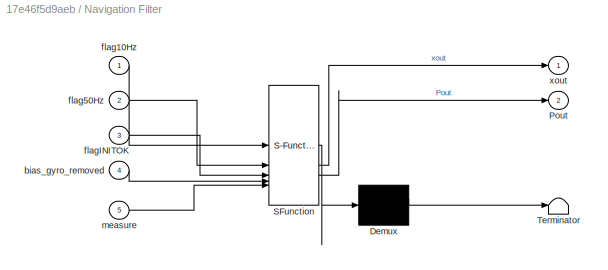
BLOCK [SubSystem] Navigation Filter
  ErrorFcn = Stateflow.Translate.translate
  PermitHierarchicalResolution = ExplicitOnly
  SFBlockType = MATLAB Function
  TreatAsAtomicUnit = on
BLOCK [Demux] Navigation Filter/ Demux 
  Outputs = 1
BLOCK [S-Function] Navigation Filter/ SFunction 
  EnableBusSupport = on
  FunctionName = sf_sfun
  Parameters = Q,dt,g,quat_c_b,sensor_covariances
  PortCounts = [5 3]
  SFcnIsStateOwnerBlock = off
  SFunctionDeploymentMode = off
  Tag = Stateflow S-Function 11
BLOCK [Terminator] Navigation Filter/ Terminator 
BLOCK [Outport] Navigation Filter/Pout
  Port = 2
BLOCK [Inport] Navigation Filter/bias_gyro_removed
  Port = 4
BLOCK [Inport] Navigation Filter/flag10Hz
BLOCK [Inport] Navigation Filter/flag50Hz
  Port = 2
BLOCK [Inport] Navigation Filter/flagINITOK
  Port = 3
BLOCK [Inport] Navigation Filter/measure
  Port = 5
BLOCK [Outport] Navigation Filter/xout
BLOCK [Scope] Omega comparison
  Floating = off
  NumInputPorts = 3
  ScopeSpecificationString = Simulink.scopes.TimeScopeBlockCfg('CurrentConfiguration', extmgr.ConfigurationSet(extmgr.Configuration('Core','General UI',true),extmgr.Configuration('Core','Source UI',true),extmgr.Configuration('Sources','WiredSimulink',true,'DataLoggingVariableName','ScopeData7'),extmgr.Configuration('Visuals','Time Domain',true,'SerializedDisplays',{struct('MinYLimReal','-0.21731','MaxYLimReal','0.44159','YLab...<+3486ch>
BLOCK [Scope] Position mechanization
  Floating = off
  NumInputPorts = 3
  ScopeSpecificationString = Simulink.scopes.TimeScopeBlockCfg('CurrentConfiguration', extmgr.ConfigurationSet(extmgr.Configuration('Core','General UI',true),extmgr.Configuration('Core','Source UI',true),extmgr.Configuration('Sources','WiredSimulink',true,'DataLoggingVariableName','ScopeData8'),extmgr.Configuration('Visuals','Time Domain',true,'SerializedDisplays',{struct('MinYLimReal','-1173.93661','MaxYLimReal','10565.37993...<+3482ch>
BLOCK [DiscretePulseGenerator] Pulse Generator
  Period = 0.1
  PulseType = Time based
  PulseWidth = 10
  SampleTime = dt
BLOCK [DiscretePulseGenerator] Pulse Generator1
  Period = 1/50
  PulseType = Time based
  PulseWidth = 50
  SampleTime = dt
BLOCK [Reference] Quaternion Conjugate  REF=aerolibutil/Quaternion
Conjugate
  SourceBlock = aerolibutil/Quaternion\nConjugate
  SourceType = Quaternion Conjugate
BLOCK [Reference] Quaternion Conjugate1  REF=aerolibutil/Quaternion
Conjugate
  SourceBlock = aerolibutil/Quaternion\nConjugate
  SourceType = Quaternion Conjugate
BLOCK [Scope] Scope
  Floating = off
  NumInputPorts = 1
  ScopeSpecificationString = Simulink.scopes.TimeScopeBlockCfg('CurrentConfiguration', extmgr.ConfigurationSet(extmgr.Configuration('Core','General UI',true),extmgr.Configuration('Core','Source UI',true),extmgr.Configuration('Sources','WiredSimulink',true,'DataLoggingVariableName','ScopeData11'),extmgr.Configuration('Visuals','Time Domain',true,'SerializedDisplays',{struct('MinYLimReal','-0.17276','MaxYLimReal','0.34914','YLa...<+1846ch>
BLOCK [Scope] Scope1
  Floating = off
  NumInputPorts = 1
  ScopeSpecificationString = Simulink.scopes.TimeScopeBlockCfg('CurrentConfiguration', extmgr.ConfigurationSet(extmgr.Configuration('Core','General UI',true),extmgr.Configuration('Core','Source UI',true),extmgr.Configuration('Sources','WiredSimulink',true,'DataLoggingVariableName','ScopeData12'),extmgr.Configuration('Visuals','Time Domain',true,'SerializedDisplays',{struct('MinYLimReal','-0.00105','MaxYLimReal','0.00168','YLa...<+1511ch>
BLOCK [Scope] Scope10
  Floating = off
  NumInputPorts = 1
  ScopeSpecificationString = Simulink.scopes.TimeScopeBlockCfg('CurrentConfiguration', extmgr.ConfigurationSet(extmgr.Configuration('Core','General UI',true),extmgr.Configuration('Core','Source UI',true),extmgr.Configuration('Sources','WiredSimulink',true,'DataLoggingVariableName','ScopeData21'),extmgr.Configuration('Visuals','Time Domain',true,'SerializedDisplays',{struct('MinYLimReal','-0.0063','MaxYLimReal','0.05477','YLab...<+1601ch>
BLOCK [Scope] Scope11
  Floating = off
  NumInputPorts = 1
  ScopeSpecificationString = Simulink.scopes.TimeScopeBlockCfg('CurrentConfiguration', extmgr.ConfigurationSet(extmgr.Configuration('Core','General UI',true),extmgr.Configuration('Core','Source UI',true),extmgr.Configuration('Sources','WiredSimulink',true,'DataLoggingVariableName','ScopeData22'),extmgr.Configuration('Visuals','Time Domain',true,'SerializedDisplays',{struct('MinYLimReal','-0.01863','MaxYLimReal','0.16757','YLa...<+1870ch>
BLOCK [Scope] Scope12
  Floating = off
  NumInputPorts = 2
  ScopeSpecificationString = Simulink.scopes.TimeScopeBlockCfg('CurrentConfiguration', extmgr.ConfigurationSet(extmgr.Configuration('Core','General UI',true),extmgr.Configuration('Core','Source UI',true),extmgr.Configuration('Sources','WiredSimulink',true,'DataLoggingVariableName','ScopeData1'),extmgr.Configuration('Visuals','Time Domain',true,'SerializedDisplays',{struct('MinYLimReal','-8.36285','MaxYLimReal','75.21548','YLa...<+1555ch>
BLOCK [Scope] Scope13
  Floating = off
  NumInputPorts = 2
  ScopeSpecificationString = Simulink.scopes.TimeScopeBlockCfg('CurrentConfiguration', extmgr.ConfigurationSet(extmgr.Configuration('Core','General UI',true),extmgr.Configuration('Core','Source UI',true),extmgr.Configuration('Sources','WiredSimulink',true,'DataLoggingVariableName','ScopeData1'),extmgr.Configuration('Visuals','Time Domain',true,'SerializedDisplays',{struct('MinYLimReal','-0.02201','MaxYLimReal','1.00297','YLab...<+1948ch>
BLOCK [Scope] Scope14
  Floating = off
  NumInputPorts = 1
  ScopeSpecificationString = Simulink.scopes.TimeScopeBlockCfg('CurrentConfiguration', extmgr.ConfigurationSet(extmgr.Configuration('Core','General UI',true),extmgr.Configuration('Core','Source UI',true),extmgr.Configuration('Sources','WiredSimulink',true,'DataLoggingVariableName','ScopeData2'),extmgr.Configuration('Visuals','Time Domain',true,'SerializedDisplays',{struct('MinYLimReal','-0.04263','MaxYLimReal','1.01832','YLab...<+1509ch>
BLOCK [Scope] Scope15
  Floating = off
  NumInputPorts = 1
  ScopeSpecificationString = Simulink.scopes.TimeScopeBlockCfg('CurrentConfiguration', extmgr.ConfigurationSet(extmgr.Configuration('Core','General UI',true),extmgr.Configuration('Core','Source UI',true),extmgr.Configuration('Sources','WiredSimulink',true,'DataLoggingVariableName','ScopeData1'),extmgr.Configuration('Visuals','Time Domain',true,'SerializedDisplays',{struct('MinYLimReal','-0.125','MaxYLimReal','1.125','YLabelRe...<+1668ch>
BLOCK [Scope] Scope16
  Floating = off
  NameLocation = top
  NumInputPorts = 1
  ScopeSpecificationString = Simulink.scopes.TimeScopeBlockCfg('CurrentConfiguration', extmgr.ConfigurationSet(extmgr.Configuration('Core','General UI',true),extmgr.Configuration('Core','Source UI',true),extmgr.Configuration('Sources','WiredSimulink',true,'DataLoggingVariableName','ScopeData2'),extmgr.Configuration('Visuals','Time Domain',true,'SerializedDisplays',{struct('MinYLimReal','-0.05','MaxYLimReal','0.45','YLabelReal...<+1493ch>
BLOCK [Scope] Scope17
  Floating = off
  NumInputPorts = 1
  ScopeSpecificationString = Simulink.scopes.TimeScopeBlockCfg('CurrentConfiguration', extmgr.ConfigurationSet(extmgr.Configuration('Core','General UI',true),extmgr.Configuration('Core','Source UI',true),extmgr.Configuration('Sources','WiredSimulink',true,'DataLoggingVariableName','ScopeData6'),extmgr.Configuration('Visuals','Time Domain',true,'SerializedDisplays',{struct('MinYLimReal','-12.53228','MaxYLimReal','112.79055','Y...<+1467ch>
BLOCK [Scope] Scope18
  Floating = off
  NameLocation = left
  NumInputPorts = 1
  ScopeSpecificationString = Simulink.scopes.TimeScopeBlockCfg('CurrentConfiguration', extmgr.ConfigurationSet(extmgr.Configuration('Core','General UI',true),extmgr.Configuration('Core','Source UI',true),extmgr.Configuration('Sources','WiredSimulink',true,'DataLoggingVariableName','ScopeData1'),extmgr.Configuration('Visuals','Time Domain',true,'SerializedDisplays',{struct('MinYLimReal','-0.05985','MaxYLimReal','0.21181','YLab...<+1894ch>
BLOCK [Scope] Scope19
  Commented = on
  Floating = off
  NumInputPorts = 1
  ScopeSpecificationString = Simulink.scopes.TimeScopeBlockCfg('CurrentConfiguration', extmgr.ConfigurationSet(extmgr.Configuration('Core','General UI',true),extmgr.Configuration('Core','Source UI',true),extmgr.Configuration('Sources','WiredSimulink',true,'DataLoggingVariableName','ScopeData1'),extmgr.Configuration('Visuals','Time Domain',true,'SerializedDisplays',{struct('MinYLimReal','-0.125','MaxYLimReal','1.125','YLabelRe...<+1556ch>
BLOCK [Scope] Scope2
  Floating = off
  NameLocation = left
  NumInputPorts = 1
  ScopeSpecificationString = Simulink.scopes.TimeScopeBlockCfg('CurrentConfiguration', extmgr.ConfigurationSet(extmgr.Configuration('Core','General UI',true),extmgr.Configuration('Core','Source UI',true),extmgr.Configuration('Sources','WiredSimulink',true,'DataLoggingVariableName','ScopeData13'),extmgr.Configuration('Visuals','Time Domain',true,'SerializedDisplays',{struct('MinYLimReal','-438.03242','MaxYLimReal','3942.2918',...<+1511ch>
BLOCK [Scope] Scope20
  Commented = on
  Floating = off
  NumInputPorts = 1
  ScopeSpecificationString = Simulink.scopes.TimeScopeBlockCfg('CurrentConfiguration', extmgr.ConfigurationSet(extmgr.Configuration('Core','General UI',true),extmgr.Configuration('Core','Source UI',true),extmgr.Configuration('Sources','WiredSimulink',true,'DataLoggingVariableName','ScopeData2'),extmgr.Configuration('Visuals','Time Domain',true,'SerializedDisplays',{struct('MinYLimReal','-1.00000','MaxYLimReal','1.00000','YLab...<+1577ch>
BLOCK [Scope] Scope21
  Commented = on
  Floating = off
  NumInputPorts = 1
  ScopeSpecificationString = Simulink.scopes.TimeScopeBlockCfg('CurrentConfiguration', extmgr.ConfigurationSet(extmgr.Configuration('Core','General UI',true),extmgr.Configuration('Core','Source UI',true),extmgr.Configuration('Sources','WiredSimulink',true,'DataLoggingVariableName','ScopeData3'),extmgr.Configuration('Visuals','Time Domain',true,'SerializedDisplays',{struct('MinYLimReal','-0.32047','MaxYLimReal','1.1468','YLabe...<+1489ch>
BLOCK [Scope] Scope22
  Commented = on
  Floating = off
  NumInputPorts = 3
  ScopeSpecificationString = Simulink.scopes.TimeScopeBlockCfg('CurrentConfiguration', extmgr.ConfigurationSet(extmgr.Configuration('Core','General UI',true),extmgr.Configuration('Core','Source UI',true),extmgr.Configuration('Sources','WiredSimulink',true,'DataLoggingVariableName','ScopeData4'),extmgr.Configuration('Visuals','Time Domain',true,'SerializedDisplays',{struct('MinYLimReal','-45.0113','MaxYLimReal','205.00126','YL...<+1592ch>
BLOCK [Scope] Scope23
  Commented = on
  Floating = off
  NumInputPorts = 1
  ScopeSpecificationString = Simulink.scopes.TimeScopeBlockCfg('CurrentConfiguration', extmgr.ConfigurationSet(extmgr.Configuration('Core','General UI',true),extmgr.Configuration('Core','Source UI',true),extmgr.Configuration('Sources','WiredSimulink',true,'DataLoggingVariableName','ScopeData5'),extmgr.Configuration('Visuals','Time Domain',true,'SerializedDisplays',{struct('MinYLimReal','0.06809','MaxYLimReal','0.33398','YLabe...<+1568ch>
BLOCK [Scope] Scope24
  Commented = on
  Floating = off
  NumInputPorts = 1
  ScopeSpecificationString = Simulink.scopes.TimeScopeBlockCfg('CurrentConfiguration', extmgr.ConfigurationSet(extmgr.Configuration('Core','General UI',true),extmgr.Configuration('Core','Source UI',true),extmgr.Configuration('Sources','WiredSimulink',true,'DataLoggingVariableName','ScopeData6'),extmgr.Configuration('Visuals','Time Domain',true,'SerializedDisplays',{struct('MinYLimReal','-0.000028','MaxYLimReal','0.000039','YL...<+1617ch>
BLOCK [Scope] Scope25
  Commented = on
  Floating = off
  NumInputPorts = 1
  ScopeSpecificationString = Simulink.scopes.TimeScopeBlockCfg('CurrentConfiguration', extmgr.ConfigurationSet(extmgr.Configuration('Core','General UI',true),extmgr.Configuration('Core','Source UI',true),extmgr.Configuration('Sources','WiredSimulink',true,'DataLoggingVariableName','ScopeData7'),extmgr.Configuration('Visuals','Time Domain',true,'SerializedDisplays',{struct('MinYLimReal','-4.05324','MaxYLimReal','4.03176','YLab...<+1491ch>
BLOCK [Scope] Scope3
  Floating = off
  NumInputPorts = 3
  ScopeSpecificationString = Simulink.scopes.TimeScopeBlockCfg('CurrentConfiguration', extmgr.ConfigurationSet(extmgr.Configuration('Core','General UI',true,'FigureColor',[0 0 0]),extmgr.Configuration('Core','Source UI',true),extmgr.Configuration('Sources','WiredSimulink',true,'DataLoggingVariableName','ScopeData14'),extmgr.Configuration('Visuals','Time Domain',true,'SerializedDisplays',{struct('MinYLimReal','-1173.945','MaxY...<+3242ch>
BLOCK [Scope] Scope4
  Floating = off
  NumInputPorts = 2
  ScopeSpecificationString = Simulink.scopes.TimeScopeBlockCfg('CurrentConfiguration', extmgr.ConfigurationSet(extmgr.Configuration('Core','General UI',true),extmgr.Configuration('Core','Source UI',true),extmgr.Configuration('Sources','WiredSimulink',true,'DataLoggingVariableName','ScopeData6'),extmgr.Configuration('Visuals','Time Domain',true,'SerializedDisplays',{struct('MinYLimReal','-0.02523','MaxYLimReal','0.22503','YLab...<+1733ch>
BLOCK [Scope] Scope5
  Floating = off
  NumInputPorts = 1
  ScopeSpecificationString = Simulink.scopes.TimeScopeBlockCfg('CurrentConfiguration', extmgr.ConfigurationSet(extmgr.Configuration('Core','General UI',true),extmgr.Configuration('Core','Source UI',true),extmgr.Configuration('Sources','WiredSimulink',true,'DataLoggingVariableName','ScopeData16'),extmgr.Configuration('Visuals','Time Domain',true,'SerializedDisplays',{struct('MinYLimReal','0.00551','MaxYLimReal','0.01027','YLab...<+1612ch>
BLOCK [Scope] Scope6
  Floating = off
  NumInputPorts = 1
  ScopeSpecificationString = Simulink.scopes.TimeScopeBlockCfg('CurrentConfiguration', extmgr.ConfigurationSet(extmgr.Configuration('Core','General UI',true),extmgr.Configuration('Core','Source UI',true),extmgr.Configuration('Sources','WiredSimulink',true,'DataLoggingVariableName','ScopeData17'),extmgr.Configuration('Visuals','Time Domain',true,'SerializedDisplays',{struct('MinYLimReal','-0.18744','MaxYLimReal','0.5823','YLab...<+1535ch>
BLOCK [Scope] Scope7
  Floating = off
  NumInputPorts = 1
  ScopeSpecificationString = Simulink.scopes.TimeScopeBlockCfg('CurrentConfiguration', extmgr.ConfigurationSet(extmgr.Configuration('Core','General UI',true),extmgr.Configuration('Core','Source UI',true),extmgr.Configuration('Sources','WiredSimulink',true,'DataLoggingVariableName','ScopeData18'),extmgr.Configuration('Visuals','Time Domain',true,'SerializedDisplays',{struct('MinYLimReal','-13.28246','MaxYLimReal','112.90442','...<+1563ch>
BLOCK [Scope] Scope8
  Floating = off
  NumInputPorts = 1
  ScopeSpecificationString = Simulink.scopes.TimeScopeBlockCfg('CurrentConfiguration', extmgr.ConfigurationSet(extmgr.Configuration('Core','General UI',true),extmgr.Configuration('Core','Source UI',true),extmgr.Configuration('Sources','WiredSimulink',true,'DataLoggingVariableName','ScopeData19'),extmgr.Configuration('Visuals','Time Domain',true),extmgr.Configuration('Tools','Plot Navigation',true),extmgr.Configuration('Tools'...<+41ch>
BLOCK [Scope] Scope9
  Floating = off
  NumInputPorts = 1
  ScopeSpecificationString = Simulink.scopes.TimeScopeBlockCfg('CurrentConfiguration', extmgr.ConfigurationSet(extmgr.Configuration('Core','General UI',true),extmgr.Configuration('Core','Source UI',true),extmgr.Configuration('Sources','WiredSimulink',true,'DataLoggingVariableName','ScopeData20'),extmgr.Configuration('Visuals','Time Domain',true,'SerializedDisplays',{struct('MinYLimReal','-0.125','MaxYLimReal','1.125','YLabelR...<+1486ch>
BLOCK [SubSystem] Subsystem
BLOCK [DiscreteIntegrator] Subsystem/Discrete-Time Integrator
  ICPrevOutput = DiscIntNeverNeededParam
  ICPrevScaledInput = DiscIntNeverNeededParam
  InitialCondition = vel_n(1,:)
  InitialConditionSetting = Auto
  SampleTime = -1
BLOCK [DiscreteIntegrator] Subsystem/Discrete-Time Integrator1
  ICPrevOutput = DiscIntNeverNeededParam
  ICPrevScaledInput = DiscIntNeverNeededParam
  InitialCondition = pos_ned(1,:)
  InitialConditionSetting = Auto
  SampleTime = -1
BLOCK [Product] Subsystem/Matrix Multiply
  Multiplication = Matrix(*)
BLOCK [Inport] Subsystem/acc_body
BLOCK [SubSystem] Subsystem/make Cbn
  ErrorFcn = Stateflow.Translate.translate
  PermitHierarchicalResolution = ExplicitOnly
  SFBlockType = MATLAB Function
  TreatAsAtomicUnit = on
BLOCK [Demux] Subsystem/make Cbn/ Demux 
  Outputs = 1
BLOCK [S-Function] Subsystem/make Cbn/ SFunction 
  EnableBusSupport = on
  FunctionName = sf_sfun
  PortCounts = [1 2]
  SFcnIsStateOwnerBlock = off
  SFunctionDeploymentMode = off
  Tag = Stateflow S-Function 2
BLOCK [Terminator] Subsystem/make Cbn/ Terminator 
BLOCK [Outport] Subsystem/make Cbn/R_nb
BLOCK [Inport] Subsystem/make Cbn/q
BLOCK [Outport] Subsystem/pos
BLOCK [Inport] Subsystem/q_NB
  Port = 2
BLOCK [Outport] Subsystem/vel
  Port = 2
BLOCK [SubSystem] Subsystem1
BLOCK [DiscreteIntegrator] Subsystem1/Discrete-Time Integrator
  ICPrevOutput = DiscIntNeverNeededParam
  ICPrevScaledInput = DiscIntNeverNeededParam
  InitialCondition = vel_n(1,:)
  InitialConditionSetting = Auto
  SampleTime = -1
BLOCK [DiscreteIntegrator] Subsystem1/Discrete-Time Integrator1
  ICPrevOutput = DiscIntNeverNeededParam
  ICPrevScaledInput = DiscIntNeverNeededParam
  InitialCondition = pos_ned(1,:)
  InitialConditionSetting = Auto
  SampleTime = -1
BLOCK [Product] Subsystem1/Matrix Multiply
  Multiplication = Matrix(*)
BLOCK [Inport] Subsystem1/acc_body
BLOCK [SubSystem] Subsystem1/make Cbn
  ErrorFcn = Stateflow.Translate.translate
  PermitHierarchicalResolution = ExplicitOnly
  SFBlockType = MATLAB Function
  TreatAsAtomicUnit = on
BLOCK [Demux] Subsystem1/make Cbn/ Demux 
  Outputs = 1
BLOCK [S-Function] Subsystem1/make Cbn/ SFunction 
  EnableBusSupport = on
  FunctionName = sf_sfun
  PortCounts = [1 2]
  SFcnIsStateOwnerBlock = off
  SFunctionDeploymentMode = off
  Tag = Stateflow S-Function 3
BLOCK [Terminator] Subsystem1/make Cbn/ Terminator 
BLOCK [Outport] Subsystem1/make Cbn/R_nb
BLOCK [Inport] Subsystem1/make Cbn/q
BLOCK [Outport] Subsystem1/pos
BLOCK [Inport] Subsystem1/q_NB
  Port = 2
BLOCK [Outport] Subsystem1/vel
  Port = 2
BLOCK [Sum] Sum
  Inputs = |-+
BLOCK [FromWorkspace] TRUE acceleration body frame
  SampleTime = ST
  VariableName = [time acc]
BLOCK [FromWorkspace] TRUE acceleration1
  SampleTime = ST
  VariableName = [time vel_n]
BLOCK [FromWorkspace] TRUE angular velocity
  SampleTime = ST
  VariableName = [time omega_b]
BLOCK [FromWorkspace] TRUE angular velocity1
  SampleTime = ST
  VariableName = [time omega_b]
BLOCK [ToWorkspace] To Workspace
  FixptAsFi = on
  MaxDataPoints = inf
  NameLocation = left
  SampleTime = -1
  SaveFormat = Timeseries
  VariableName = bias_KF
BLOCK [Math] Transpose
  Commented = on
  Operator = transpose
BLOCK [Math] Transpose1
  Commented = on
  Operator = transpose
BLOCK [Math] Transpose2
  Operator = transpose
BLOCK [Math] Transpose3
  Operator = transpose
BLOCK [Math] Transpose4
  Operator = transpose
BLOCK [FromWorkspace] True Attitude Quaternion
  SampleTime = ST
  VariableName = [time quat_c_b]
BLOCK [FromWorkspace] True Attitude Quaternion1
  Commented = on
  SampleTime = ST
  VariableName = [time quat_c]
BLOCK [FromWorkspace] True Attitude Quaternion2
  SampleTime = ST
  VariableName = [time quat_c_b]
BLOCK [FromWorkspace] True Attitude Quaternion3
  SampleTime = ST
  VariableName = [time quat_c_b]
BLOCK [FromWorkspace] True Attitude Quaternion4
  SampleTime = ST
  VariableName = [time quat_c_b]
BLOCK [FromWorkspace] True Attitude Quaternion5
  SampleTime = ST
  VariableName = [time quat_c_b]
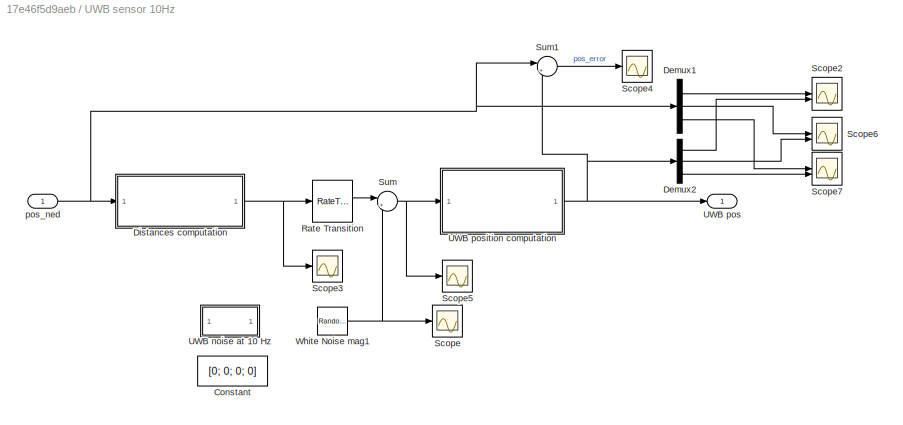
BLOCK [SubSystem] UWB sensor 10Hz
BLOCK [Constant] UWB sensor 10Hz/Constant
  Value = [0; 0; 0; 0]
BLOCK [Demux] UWB sensor 10Hz/Demux1
  Outputs = 3
BLOCK [Demux] UWB sensor 10Hz/Demux2
  Outputs = 3
BLOCK [SubSystem] UWB sensor 10Hz/Distances computation
  ErrorFcn = Stateflow.Translate.translate
  PermitHierarchicalResolution = ExplicitOnly
  SFBlockType = MATLAB Function
  TreatAsAtomicUnit = on
BLOCK [Demux] UWB sensor 10Hz/Distances computation/ Demux 
  Outputs = 1
BLOCK [S-Function] UWB sensor 10Hz/Distances computation/ SFunction 
  EnableBusSupport = on
  FunctionName = sf_sfun
  Parameters = P_bases_ned
  PortCounts = [1 2]
  SFcnIsStateOwnerBlock = off
  SFunctionDeploymentMode = off
  Tag = Stateflow S-Function 1
BLOCK [Terminator] UWB sensor 10Hz/Distances computation/ Terminator 
BLOCK [Outport] UWB sensor 10Hz/Distances computation/d
BLOCK [Inport] UWB sensor 10Hz/Distances computation/pos_ned
BLOCK [RateTransition] UWB sensor 10Hz/Rate Transition
  Commented = through
  OutPortSampleTime = 1/10
BLOCK [Scope] UWB sensor 10Hz/Scope
  Floating = off
  NumInputPorts = 1
  ScopeSpecificationString = Simulink.scopes.TimeScopeBlockCfg('CurrentConfiguration', extmgr.ConfigurationSet(extmgr.Configuration('Core','General UI',true),extmgr.Configuration('Core','Source UI',true),extmgr.Configuration('Sources','WiredSimulink',true,'DataLoggingVariableName','ScopeData1'),extmgr.Configuration('Visuals','Time Domain',true,'SerializedDisplays',{struct('MinYLimReal','-0.38772','MaxYLimReal','0.448','YLabel...<+1556ch>
BLOCK [Scope] UWB sensor 10Hz/Scope2
  Floating = off
  NumInputPorts = 2
  ScopeSpecificationString = Simulink.scopes.TimeScopeBlockCfg('CurrentConfiguration', extmgr.ConfigurationSet(extmgr.Configuration('Core','General UI',true),extmgr.Configuration('Core','Source UI',true),extmgr.Configuration('Sources','WiredSimulink',true,'DataLoggingVariableName','ScopeData4'),extmgr.Configuration('Visuals','Time Domain',true,'SerializedDisplays',{struct('MinYLimReal','-801.77897','MaxYLimReal','7215.97232',...<+1528ch>
BLOCK [Scope] UWB sensor 10Hz/Scope3
  Floating = off
  NumInputPorts = 1
  ScopeSpecificationString = Simulink.scopes.TimeScopeBlockCfg('CurrentConfiguration', extmgr.ConfigurationSet(extmgr.Configuration('Core','General UI',true),extmgr.Configuration('Core','Source UI',true),extmgr.Configuration('Sources','WiredSimulink',true,'DataLoggingVariableName','ScopeData14'),extmgr.Configuration('Visuals','Time Domain',true,'SerializedDisplays',{struct('MinYLimReal','-946.03158','MaxYLimReal','8514.28426'...<+1731ch>
BLOCK [Scope] UWB sensor 10Hz/Scope4
  Floating = off
  NumInputPorts = 1
  ScopeSpecificationString = Simulink.scopes.TimeScopeBlockCfg('CurrentConfiguration', extmgr.ConfigurationSet(extmgr.Configuration('Core','General UI',true),extmgr.Configuration('Core','Source UI',true),extmgr.Configuration('Sources','WiredSimulink',true,'DataLoggingVariableName','ScopeData12'),extmgr.Configuration('Visuals','Time Domain',true,'SerializedDisplays',{struct('MinYLimReal','-0.0198','MaxYLimReal','0.0237','YLabe...<+1578ch>
BLOCK [Scope] UWB sensor 10Hz/Scope5
  Floating = off
  NumInputPorts = 1
  ScopeSpecificationString = Simulink.scopes.TimeScopeBlockCfg('CurrentConfiguration', extmgr.ConfigurationSet(extmgr.Configuration('Core','General UI',true),extmgr.Configuration('Core','Source UI',true),extmgr.Configuration('Sources','WiredSimulink',true,'DataLoggingVariableName','ScopeData8'),extmgr.Configuration('Visuals','Time Domain',true,'SerializedDisplays',{struct('MinYLimReal','1001.9626','MaxYLimReal','1002.6','YLab...<+1550ch>
BLOCK [Scope] UWB sensor 10Hz/Scope6
  Floating = off
  NumInputPorts = 2
  ScopeSpecificationString = Simulink.scopes.TimeScopeBlockCfg('CurrentConfiguration', extmgr.ConfigurationSet(extmgr.Configuration('Core','General UI',true),extmgr.Configuration('Core','Source UI',true),extmgr.Configuration('Sources','WiredSimulink',true,'DataLoggingVariableName','ScopeData3'),extmgr.Configuration('Visuals','Time Domain',true,'SerializedDisplays',{struct('MinYLimReal','-364.79349','MaxYLimReal','3275.37823',...<+1485ch>
BLOCK [Scope] UWB sensor 10Hz/Scope7
  Floating = off
  NumInputPorts = 2
  ScopeSpecificationString = Simulink.scopes.TimeScopeBlockCfg('CurrentConfiguration', extmgr.ConfigurationSet(extmgr.Configuration('Core','General UI',true),extmgr.Configuration('Core','Source UI',true),extmgr.Configuration('Sources','WiredSimulink',true,'DataLoggingVariableName','ScopeData5'),extmgr.Configuration('Visuals','Time Domain',true,'SerializedDisplays',{struct('MinYLimReal','-24.78891','MaxYLimReal','223.05702','Y...<+1477ch>
BLOCK [Sum] UWB sensor 10Hz/Sum
  Inputs = |++
BLOCK [Sum] UWB sensor 10Hz/Sum1
  Inputs = |+-
BLOCK [SubSystem] UWB sensor 10Hz/UWB noise at 10 Hz
BLOCK [Mux] UWB sensor 10Hz/UWB noise at 10 Hz/Mux
  DisplayOption = bar
BLOCK [Mux] UWB sensor 10Hz/UWB noise at 10 Hz/Mux1
  DisplayOption = bar
BLOCK [Mux] UWB sensor 10Hz/UWB noise at 10 Hz/Mux2
  DisplayOption = bar
  Inputs = 2
BLOCK [SubSystem] UWB sensor 10Hz/UWB noise at 10 Hz/UWB-like noise d1
BLOCK [SubSystem] UWB sensor 10Hz/UWB noise at 10 Hz/UWB-like noise d1 
BLOCK [Gain] UWB sensor 10Hz/UWB noise at 10 Hz/UWB-like noise d1 /Gain
  Gain = 0.75
BLOCK [Gain] UWB sensor 10Hz/UWB noise at 10 Hz/UWB-like noise d1 /Gain1
  Gain = AMPd1
BLOCK [Reference] UWB sensor 10Hz/UWB noise at 10 Hz/UWB-like noise d1 /LTI System1  REF=cstblocks/LTI System
  SourceBlock = cstblocks/LTI System
  SourceType = LTI Block
BLOCK [RandomNumber] UWB sensor 10Hz/UWB noise at 10 Hz/UWB-like noise d1 /Random Number
  SampleTime = 1/freq_UWB
  Seed = 10
  Variance = 0.01
BLOCK [Scope] UWB sensor 10Hz/UWB noise at 10 Hz/UWB-like noise d1 /Scope
  Floating = off
  NumInputPorts = 1
  ScopeSpecificationString = Simulink.scopes.TimeScopeBlockCfg('CurrentConfiguration', extmgr.ConfigurationSet(extmgr.Configuration('Core','General UI',true),extmgr.Configuration('Core','Source UI',true),extmgr.Configuration('Sources','WiredSimulink',true,'DataLoggingVariableName','ScopeData19'),extmgr.Configuration('Visuals','Time Domain',true,'SerializedDisplays',{struct('MinYLimReal','-1.52728','MaxYLimReal','1.65685','YLa...<+1453ch>
BLOCK [Scope] UWB sensor 10Hz/UWB noise at 10 Hz/UWB-like noise d1 /Scope1
  Floating = off
  NumInputPorts = 1
  ScopeSpecificationString = Simulink.scopes.TimeScopeBlockCfg('CurrentConfiguration', extmgr.ConfigurationSet(extmgr.Configuration('Core','General UI',true),extmgr.Configuration('Core','Source UI',true),extmgr.Configuration('Sources','WiredSimulink',true,'DataLoggingVariableName','ScopeData20'),extmgr.Configuration('Visuals','Time Domain',true,'SerializedDisplays',{struct('MinYLimReal','-0.37838','MaxYLimReal','0.40885','YLa...<+1460ch>
BLOCK [Scope] UWB sensor 10Hz/UWB noise at 10 Hz/UWB-like noise d1 /Scope2
  Floating = off
  NumInputPorts = 1
  ScopeSpecificationString = Simulink.scopes.TimeScopeBlockCfg('CurrentConfiguration', extmgr.ConfigurationSet(extmgr.Configuration('Core','General UI',true),extmgr.Configuration('Core','Source UI',true),extmgr.Configuration('Sources','WiredSimulink',true,'DataLoggingVariableName','ScopeData21'),extmgr.Configuration('Visuals','Time Domain',true,'SerializedDisplays',{struct('MinYLimReal','-0.37838','MaxYLimReal','0.40885','YLa...<+1493ch>
BLOCK [Outport] UWB sensor 10Hz/UWB noise at 10 Hz/UWB-like noise d1 /d1_err
BLOCK [Gain] UWB sensor 10Hz/UWB noise at 10 Hz/UWB-like noise d1/Gain
  Gain = 0.75
BLOCK [Gain] UWB sensor 10Hz/UWB noise at 10 Hz/UWB-like noise d1/Gain1
  Gain = AMPd4
BLOCK [Reference] UWB sensor 10Hz/UWB noise at 10 Hz/UWB-like noise d1/LTI System1  REF=cstblocks/LTI System
  SourceBlock = cstblocks/LTI System
  SourceType = LTI Block
BLOCK [RandomNumber] UWB sensor 10Hz/UWB noise at 10 Hz/UWB-like noise d1/Random Number
  SampleTime = 1/freq_UWB
  Seed = 13
  Variance = 0.01
BLOCK [Outport] UWB sensor 10Hz/UWB noise at 10 Hz/UWB-like noise d1/d4_err
BLOCK [SubSystem] UWB sensor 10Hz/UWB noise at 10 Hz/UWB-like noise d2
BLOCK [Gain] UWB sensor 10Hz/UWB noise at 10 Hz/UWB-like noise d2/Gain
  Gain = 0.75
BLOCK [Gain] UWB sensor 10Hz/UWB noise at 10 Hz/UWB-like noise d2/Gain1
  Gain = AMPd2
BLOCK [Reference] UWB sensor 10Hz/UWB noise at 10 Hz/UWB-like noise d2/LTI System1  REF=cstblocks/LTI System
  SourceBlock = cstblocks/LTI System
  SourceType = LTI Block
BLOCK [RandomNumber] UWB sensor 10Hz/UWB noise at 10 Hz/UWB-like noise d2/Random Number
  SampleTime = 1/freq_UWB
  Seed = 11
  Variance = 0.01
BLOCK [Outport] UWB sensor 10Hz/UWB noise at 10 Hz/UWB-like noise d2/d2_err
BLOCK [SubSystem] UWB sensor 10Hz/UWB noise at 10 Hz/UWB-like noise d3
BLOCK [Gain] UWB sensor 10Hz/UWB noise at 10 Hz/UWB-like noise d3/Gain
  Gain = 0.75
BLOCK [Gain] UWB sensor 10Hz/UWB noise at 10 Hz/UWB-like noise d3/Gain1
  Gain = AMPd3
BLOCK [Reference] UWB sensor 10Hz/UWB noise at 10 Hz/UWB-like noise d3/LTI System1  REF=cstblocks/LTI System
  SourceBlock = cstblocks/LTI System
  SourceType = LTI Block
BLOCK [RandomNumber] UWB sensor 10Hz/UWB noise at 10 Hz/UWB-like noise d3/Random Number
  SampleTime = 1/freq_UWB
  Seed = 12
  Variance = 0.01
BLOCK [Outport] UWB sensor 10Hz/UWB noise at 10 Hz/UWB-like noise d3/d3_err
BLOCK [SubSystem] UWB sensor 10Hz/UWB noise at 10 Hz/UWB-like noise d4
BLOCK [Gain] UWB sensor 10Hz/UWB noise at 10 Hz/UWB-like noise d4/Gain
  Gain = 0.75
BLOCK [Gain] UWB sensor 10Hz/UWB noise at 10 Hz/UWB-like noise d4/Gain1
  Gain = AMPd4
BLOCK [Reference] UWB sensor 10Hz/UWB noise at 10 Hz/UWB-like noise d4/LTI System1  REF=cstblocks/LTI System
  SourceBlock = cstblocks/LTI System
  SourceType = LTI Block
BLOCK [RandomNumber] UWB sensor 10Hz/UWB noise at 10 Hz/UWB-like noise d4/Random Number
  SampleTime = 1/freq_UWB
  Seed = 13
  Variance = 0.01
BLOCK [Outport] UWB sensor 10Hz/UWB noise at 10 Hz/UWB-like noise d4/d4_err
BLOCK [SubSystem] UWB sensor 10Hz/UWB noise at 10 Hz/UWB-like noise d5
BLOCK [Gain] UWB sensor 10Hz/UWB noise at 10 Hz/UWB-like noise d5/Gain
  Gain = 0.75
BLOCK [Gain] UWB sensor 10Hz/UWB noise at 10 Hz/UWB-like noise d5/Gain1
  Gain = AMPd4
BLOCK [Reference] UWB sensor 10Hz/UWB noise at 10 Hz/UWB-like noise d5/LTI System1  REF=cstblocks/LTI System
  SourceBlock = cstblocks/LTI System
  SourceType = LTI Block
BLOCK [RandomNumber] UWB sensor 10Hz/UWB noise at 10 Hz/UWB-like noise d5/Random Number
  SampleTime = 1/freq_UWB
  Seed = 13
  Variance = 0.01
BLOCK [Outport] UWB sensor 10Hz/UWB noise at 10 Hz/UWB-like noise d5/d4_err
BLOCK [SubSystem] UWB sensor 10Hz/UWB noise at 10 Hz/UWB-like noise d6
BLOCK [Gain] UWB sensor 10Hz/UWB noise at 10 Hz/UWB-like noise d6/Gain
  Gain = 0.75
BLOCK [Gain] UWB sensor 10Hz/UWB noise at 10 Hz/UWB-like noise d6/Gain1
  Gain = AMPd4
BLOCK [Reference] UWB sensor 10Hz/UWB noise at 10 Hz/UWB-like noise d6/LTI System1  REF=cstblocks/LTI System
  SourceBlock = cstblocks/LTI System
  SourceType = LTI Block
BLOCK [RandomNumber] UWB sensor 10Hz/UWB noise at 10 Hz/UWB-like noise d6/Random Number
  SampleTime = 1/freq_UWB
  Seed = 13
  Variance = 0.01
BLOCK [Outport] UWB sensor 10Hz/UWB noise at 10 Hz/UWB-like noise d6/d4_err
BLOCK [SubSystem] UWB sensor 10Hz/UWB noise at 10 Hz/UWB-like noise d7
BLOCK [Gain] UWB sensor 10Hz/UWB noise at 10 Hz/UWB-like noise d7/Gain
  Gain = 0.75
BLOCK [Gain] UWB sensor 10Hz/UWB noise at 10 Hz/UWB-like noise d7/Gain1
  Gain = AMPd4
BLOCK [Reference] UWB sensor 10Hz/UWB noise at 10 Hz/UWB-like noise d7/LTI System1  REF=cstblocks/LTI System
  SourceBlock = cstblocks/LTI System
  SourceType = LTI Block
BLOCK [RandomNumber] UWB sensor 10Hz/UWB noise at 10 Hz/UWB-like noise d7/Random Number
  SampleTime = 1/freq_UWB
  Seed = 13
  Variance = 0.01
BLOCK [Outport] UWB sensor 10Hz/UWB noise at 10 Hz/UWB-like noise d7/d4_err
BLOCK [Outport] UWB sensor 10Hz/UWB noise at 10 Hz/d _err [m]
BLOCK [Outport] UWB sensor 10Hz/UWB pos 
BLOCK [SubSystem] UWB sensor 10Hz/UWB position computation
  ErrorFcn = Stateflow.Translate.translate
  PermitHierarchicalResolution = ExplicitOnly
  SFBlockType = MATLAB Function
  TreatAsAtomicUnit = on
BLOCK [Demux] UWB sensor 10Hz/UWB position computation/ Demux 
  Outputs = 1
BLOCK [S-Function] UWB sensor 10Hz/UWB position computation/ SFunction 
  EnableBusSupport = on
  FunctionName = sf_sfun
  Parameters = P_bases_ned
  PortCounts = [1 2]
  SFcnIsStateOwnerBlock = off
  SFunctionDeploymentMode = off
  Tag = Stateflow S-Function 10
BLOCK [Terminator] UWB sensor 10Hz/UWB position computation/ Terminator 
BLOCK [Outport] UWB sensor 10Hz/UWB position computation/UWB_pos_ned
BLOCK [Inport] UWB sensor 10Hz/UWB position computation/d_meas
BLOCK [RandomNumber] UWB sensor 10Hz/White Noise mag1
  DisableCoverage = on
  Mean = zeros(N_bases,1)
  SampleTime = 1/freq_UWB
  Seed = 7:7+N_bases-1
  Variance = std_dev_UWB1*ones(N_bases,1)
BLOCK [Inport] UWB sensor 10Hz/pos_ned
  PortDimensions = 3
BLOCK [Scope] Velocity navigation comparison
  Floating = off
  NumInputPorts = 3
  ScopeSpecificationString = Simulink.scopes.TimeScopeBlockCfg('CurrentConfiguration', extmgr.ConfigurationSet(extmgr.Configuration('Core','General UI',true),extmgr.Configuration('Core','Source UI',true),extmgr.Configuration('Sources','WiredSimulink',true,'DataLoggingVariableName','ScopeData9'),extmgr.Configuration('Visuals','Time Domain',true,'SerializedDisplays',{struct('MinYLimReal','-125.09347','MaxYLimReal','125.33064','...<+3338ch>
BLOCK [Scope] Velocity navigation mechanization
  Floating = off
  NumInputPorts = 3
  ScopeSpecificationString = Simulink.scopes.TimeScopeBlockCfg('CurrentConfiguration', extmgr.ConfigurationSet(extmgr.Configuration('Core','General UI',true),extmgr.Configuration('Core','Source UI',true),extmgr.Configuration('Sources','WiredSimulink',true,'DataLoggingVariableName','ScopeData10'),extmgr.Configuration('Visuals','Time Domain',true,'SerializedDisplays',{struct('MinYLimReal','-124.94899','MaxYLimReal','125.2934','...<+3426ch>
BLOCK [Scope] Velocity navigation mechanization1
  Floating = off
  NumInputPorts = 3
  ScopeSpecificationString = Simulink.scopes.TimeScopeBlockCfg('CurrentConfiguration', extmgr.ConfigurationSet(extmgr.Configuration('Core','General UI',true),extmgr.Configuration('Core','Source UI',true),extmgr.Configuration('Sources','WiredSimulink',true,'DataLoggingVariableName','ScopeData1'),extmgr.Configuration('Visuals','Time Domain',true,'SerializedDisplays',{struct('MinYLimReal','-0.73024','MaxYLimReal','0.50756','YLab...<+3423ch>
BLOCK [Scope] Velocity navigation mechanization2
  Floating = off
  NumInputPorts = 3
  ScopeSpecificationString = Simulink.scopes.TimeScopeBlockCfg('CurrentConfiguration', extmgr.ConfigurationSet(extmgr.Configuration('Core','General UI',true),extmgr.Configuration('Core','Source UI',true),extmgr.Configuration('Sources','WiredSimulink',true,'DataLoggingVariableName','ScopeData1'),extmgr.Configuration('Visuals','Time Domain',true,'SerializedDisplays',{struct('MinYLimReal','-0.83954','MaxYLimReal','0.70359','YLab...<+3352ch>
BLOCK [SubSystem] debias 1
BLOCK [Sum] debias 1/Add
  IconShape = rectangular
  Inputs = +-
BLOCK [DataTypeConversion] debias 1/Data Type Conversion mx1
  NameLocation = top
  OutDataTypeStr = boolean
  RndMeth = Round
BLOCK [DataTypeConversion] debias 1/Data Type Conversion mx8
  NameLocation = top
  OutDataTypeStr = single
  RndMeth = Round
BLOCK [SubSystem] debias 1/Gyro Detrend 
BLOCK [Demux] debias 1/Gyro Detrend /Demux
  DisplayOption = none
  Outputs = 3
BLOCK [SubSystem] debias 1/Gyro Detrend /Detrend
BLOCK [Reference] debias 1/Gyro Detrend /Detrend/Compare To Constant  REF=simulink/Logic and Bit
Operations/Compare
To Constant
  NameLocation = left
  SourceBlock = simulink/Logic and Bit\nOperations/Compare\nTo Constant
  SourceType = Compare To Constant
BLOCK [Constant] debias 1/Gyro Detrend /Detrend/Constant1
  OutDataTypeStr = single
  Value = 0
BLOCK [Outport] debias 1/Gyro Detrend /Detrend/Detrended Output
BLOCK [Inport] debias 1/Gyro Detrend /Detrend/Detrending
  Port = 2
BLOCK [SubSystem] debias 1/Gyro Detrend /Detrend/Subsystem
  TreatAsAtomicUnit = on
BLOCK [Constant] debias 1/Gyro Detrend /Detrend/Subsystem/Constant
  OutDataTypeStr = single
BLOCK [DiscreteIntegrator] debias 1/Gyro Detrend /Detrend/Subsystem/Discrete-Time Integrator
  ICPrevOutput = DiscIntNeverNeededParam
  ICPrevScaledInput = DiscIntNeverNeededParam
  SampleTime = ST
BLOCK [DiscreteIntegrator] debias 1/Gyro Detrend /Detrend/Subsystem/Discrete-Time Integrator1
  ICPrevOutput = DiscIntNeverNeededParam
  ICPrevScaledInput = DiscIntNeverNeededParam
  InitialCondition = eps
  SampleTime = ST
BLOCK [EnablePort] debias 1/Gyro Detrend /Detrend/Subsystem/Enable
BLOCK [Product] debias 1/Gyro Detrend /Detrend/Subsystem/Product1
  InputSameDT = on
  Inputs = */
  OutDataTypeStr = Inherit: Same as first input
  RndMeth = Zero
  SaturateOnIntegerOverflow = on
BLOCK [Scope] debias 1/Gyro Detrend /Detrend/Subsystem/Scope
  Floating = off
  NumInputPorts = 2
  ScopeSpecificationString = Simulink.scopes.TimeScopeBlockCfg('CurrentConfiguration', extmgr.ConfigurationSet(extmgr.Configuration('Core','General UI',true),extmgr.Configuration('Core','Source UI',true),extmgr.Configuration('Sources','WiredSimulink',true,'DataLoggingVariableName','ScopeData1'),extmgr.Configuration('Visuals','Time Domain',true,'SerializedDisplays',{struct('MinYLimReal','-0.0072','MaxYLimReal','0.06483','YLabe...<+1603ch>
BLOCK [Outport] debias 1/Gyro Detrend /Detrend/Subsystem/estimated bias 
BLOCK [Inport] debias 1/Gyro Detrend /Detrend/Subsystem/omega_x
BLOCK [Sum] debias 1/Gyro Detrend /Detrend/Sum1
  InputSameDT = on
  Inputs = |+-
  OutDataTypeStr = Inherit: Same as first input
  SaturateOnIntegerOverflow = on
BLOCK [Switch] debias 1/Gyro Detrend /Detrend/Switch2
  Threshold = 0.5
BLOCK [Outport] debias 1/Gyro Detrend /Detrend/estimated bias 
  Port = 2
BLOCK [Inport] debias 1/Gyro Detrend /Detrend/omega_x
BLOCK [SubSystem] debias 1/Gyro Detrend /Detrend1
BLOCK [Reference] debias 1/Gyro Detrend /Detrend1/Compare To Constant  REF=simulink/Logic and Bit
Operations/Compare
To Constant
  NameLocation = left
  SourceBlock = simulink/Logic and Bit\nOperations/Compare\nTo Constant
  SourceType = Compare To Constant
BLOCK [Constant] debias 1/Gyro Detrend /Detrend1/Constant1
  OutDataTypeStr = single
  Value = 0
BLOCK [Outport] debias 1/Gyro Detrend /Detrend1/Detrended Output
BLOCK [Inport] debias 1/Gyro Detrend /Detrend1/Detrending
  Port = 2
BLOCK [SubSystem] debias 1/Gyro Detrend /Detrend1/Subsystem
  TreatAsAtomicUnit = on
BLOCK [Constant] debias 1/Gyro Detrend /Detrend1/Subsystem/Constant
  OutDataTypeStr = single
BLOCK [DiscreteIntegrator] debias 1/Gyro Detrend /Detrend1/Subsystem/Discrete-Time Integrator
  ICPrevOutput = DiscIntNeverNeededParam
  ICPrevScaledInput = DiscIntNeverNeededParam
  SampleTime = ST
BLOCK [DiscreteIntegrator] debias 1/Gyro Detrend /Detrend1/Subsystem/Discrete-Time Integrator1
  ICPrevOutput = DiscIntNeverNeededParam
  ICPrevScaledInput = DiscIntNeverNeededParam
  InitialCondition = eps
  SampleTime = ST
BLOCK [EnablePort] debias 1/Gyro Detrend /Detrend1/Subsystem/Enable
BLOCK [Product] debias 1/Gyro Detrend /Detrend1/Subsystem/Product1
  InputSameDT = on
  Inputs = */
  OutDataTypeStr = Inherit: Same as first input
  RndMeth = Zero
  SaturateOnIntegerOverflow = on
BLOCK [Inport] debias 1/Gyro Detrend /Detrend1/Subsystem/acc_y
BLOCK [Outport] debias 1/Gyro Detrend /Detrend1/Subsystem/removed bias 
BLOCK [Sum] debias 1/Gyro Detrend /Detrend1/Sum1
  InputSameDT = on
  Inputs = |+-
  OutDataTypeStr = Inherit: Same as first input
  SaturateOnIntegerOverflow = on
BLOCK [Switch] debias 1/Gyro Detrend /Detrend1/Switch2
  Threshold = 0.5
BLOCK [Inport] debias 1/Gyro Detrend /Detrend1/omega_y
BLOCK [Outport] debias 1/Gyro Detrend /Detrend1/removed bias 
  Port = 2
BLOCK [SubSystem] debias 1/Gyro Detrend /Detrend2
BLOCK [Reference] debias 1/Gyro Detrend /Detrend2/Compare To Constant  REF=simulink/Logic and Bit
Operations/Compare
To Constant
  NameLocation = left
  SourceBlock = simulink/Logic and Bit\nOperations/Compare\nTo Constant
  SourceType = Compare To Constant
BLOCK [Constant] debias 1/Gyro Detrend /Detrend2/Constant1
  OutDataTypeStr = single
  Value = 0
BLOCK [Outport] debias 1/Gyro Detrend /Detrend2/Detrended Output
BLOCK [Inport] debias 1/Gyro Detrend /Detrend2/Detrending
  Port = 2
BLOCK [SubSystem] debias 1/Gyro Detrend /Detrend2/Subsystem
  TreatAsAtomicUnit = on
BLOCK [Constant] debias 1/Gyro Detrend /Detrend2/Subsystem/Constant
  OutDataTypeStr = single
BLOCK [DiscreteIntegrator] debias 1/Gyro Detrend /Detrend2/Subsystem/Discrete-Time Integrator
  ICPrevOutput = DiscIntNeverNeededParam
  ICPrevScaledInput = DiscIntNeverNeededParam
  SampleTime = ST
BLOCK [DiscreteIntegrator] debias 1/Gyro Detrend /Detrend2/Subsystem/Discrete-Time Integrator1
  ICPrevOutput = DiscIntNeverNeededParam
  ICPrevScaledInput = DiscIntNeverNeededParam
  InitialCondition = eps
  SampleTime = ST
BLOCK [EnablePort] debias 1/Gyro Detrend /Detrend2/Subsystem/Enable
BLOCK [Product] debias 1/Gyro Detrend /Detrend2/Subsystem/Product1
  InputSameDT = on
  Inputs = */
  OutDataTypeStr = Inherit: Same as first input
  RndMeth = Zero
  SaturateOnIntegerOverflow = on
BLOCK [Inport] debias 1/Gyro Detrend /Detrend2/Subsystem/acc_y
BLOCK [Outport] debias 1/Gyro Detrend /Detrend2/Subsystem/removed bias 
BLOCK [Sum] debias 1/Gyro Detrend /Detrend2/Sum1
  InputSameDT = on
  Inputs = |+-
  OutDataTypeStr = Inherit: Same as first input
  SaturateOnIntegerOverflow = on
BLOCK [Switch] debias 1/Gyro Detrend /Detrend2/Switch2
  Threshold = 0.5
BLOCK [Inport] debias 1/Gyro Detrend /Detrend2/omega_z
BLOCK [Outport] debias 1/Gyro Detrend /Detrend2/removed bias 
  Port = 2
BLOCK [Outport] debias 1/Gyro Detrend /Detrended omega
BLOCK [Inport] debias 1/Gyro Detrend /Detrending
  Port = 2
BLOCK [Mux] debias 1/Gyro Detrend /Mux
  DisplayOption = bar
  Inputs = 3
BLOCK [Mux] debias 1/Gyro Detrend /Mux1
  DisplayOption = bar
  Inputs = 3
BLOCK [Scope] debias 1/Gyro Detrend /Scope1
  Floating = off
  NumInputPorts = 1
  ScopeSpecificationString = Simulink.scopes.TimeScopeBlockCfg('CurrentConfiguration', extmgr.ConfigurationSet(extmgr.Configuration('Core','General UI',true),extmgr.Configuration('Core','Source UI',true),extmgr.Configuration('Sources','WiredSimulink',true,'DataLoggingVariableName','ScopeData5'),extmgr.Configuration('Visuals','Time Domain',true,'SerializedDisplays',{struct('MinYLimReal','-11.78935','MaxYLimReal','4.72571','YLa...<+1487ch>
BLOCK [Outport] debias 1/Gyro Detrend /estimated biases
  Port = 2
BLOCK [Inport] debias 1/Gyro Detrend /gyro
BLOCK [Scope] debias 1/Scope
  Floating = off
  NumInputPorts = 1
  ScopeSpecificationString = Simulink.scopes.TimeScopeBlockCfg('CurrentConfiguration', extmgr.ConfigurationSet(extmgr.Configuration('Core','General UI',true),extmgr.Configuration('Core','Source UI',true),extmgr.Configuration('Sources','WiredSimulink',true,'DataLoggingVariableName','ScopeData3'),extmgr.Configuration('Visuals','Time Domain',true,'SerializedDisplays',{struct('MinYLimReal','-0.00166','MaxYLimReal','0.02007','YLab...<+1644ch>
BLOCK [Step] debias 1/Step
  SampleTime = ST
  Time = 0.02
BLOCK [Step] debias 1/Step1
  SampleTime = ST
BLOCK [Outport] debias 1/estimated biases gyro
  Port = 3
BLOCK [Outport] debias 1/flag_init
BLOCK [Inport] debias 1/omega
BLOCK [Outport] debias 1/omega_out
  Port = 2
BLOCK [SubSystem] make Cnb
  ErrorFcn = Stateflow.Translate.translate
  PermitHierarchicalResolution = ExplicitOnly
  SFBlockType = MATLAB Function
  TreatAsAtomicUnit = on
BLOCK [Demux] make Cnb/ Demux 
  Outputs = 1
BLOCK [S-Function] make Cnb/ SFunction 
  EnableBusSupport = on
  FunctionName = sf_sfun
  PortCounts = [1 2]
  SFcnIsStateOwnerBlock = off
  SFunctionDeploymentMode = off
  Tag = Stateflow S-Function 4
BLOCK [Terminator] make Cnb/ Terminator 
BLOCK [Inport] make Cnb/Q_NB
BLOCK [Outport] make Cnb/mag_b
BLOCK [FromWorkspace] pos_ned_true
  SampleTime = ST
  VariableName = [time pos_ned]
BLOCK [FromWorkspace] pos_ned_true1
  SampleTime = ST
  VariableName = [time pos_ned]
BLOCK [SubSystem] q2eul
  Commented = on
  ErrorFcn = Stateflow.Translate.translate
  PermitHierarchicalResolution = ExplicitOnly
  SFBlockType = MATLAB Function
  TreatAsAtomicUnit = on
BLOCK [Demux] q2eul/ Demux 
  Outputs = 1
BLOCK [S-Function] q2eul/ SFunction 
  EnableBusSupport = on
  FunctionName = sf_sfun
  PortCounts = [1 2]
  SFcnIsStateOwnerBlock = off
  SFunctionDeploymentMode = off
  Tag = Stateflow S-Function 12
BLOCK [Terminator] q2eul/ Terminator 
BLOCK [Inport] q2eul/u
BLOCK [Outport] q2eul/y
BLOCK [SubSystem] q2eul_
  Commented = on
  ErrorFcn = Stateflow.Translate.translate
  PermitHierarchicalResolution = ExplicitOnly
  SFBlockType = MATLAB Function
  TreatAsAtomicUnit = on
BLOCK [Demux] q2eul_/ Demux 
  Outputs = 1
BLOCK [S-Function] q2eul_/ SFunction 
  EnableBusSupport = on
  FunctionName = sf_sfun
  PortCounts = [1 2]
  SFcnIsStateOwnerBlock = off
  SFunctionDeploymentMode = off
  Tag = Stateflow S-Function 17
BLOCK [Terminator] q2eul_/ Terminator 
BLOCK [Inport] q2eul_/u
BLOCK [Outport] q2eul_/y
BLOCK [SubSystem] q2eul__
  Commented = on
  ErrorFcn = Stateflow.Translate.translate
  PermitHierarchicalResolution = ExplicitOnly
  SFBlockType = MATLAB Function
  TreatAsAtomicUnit = on
BLOCK [Demux] q2eul__/ Demux 
  Outputs = 1
BLOCK [S-Function] q2eul__/ SFunction 
  EnableBusSupport = on
  FunctionName = sf_sfun
  PortCounts = [1 2]
  SFcnIsStateOwnerBlock = off
  SFunctionDeploymentMode = off
  Tag = Stateflow S-Function 20
BLOCK [Terminator] q2eul__/ Terminator 
BLOCK [Inport] q2eul__/u
BLOCK [Outport] q2eul__/y
BLOCK [FromWorkspace] vel_ned_true1
  SampleTime = ST
  VariableName = [time vel_n]
BLOCK [FromWorkspace] vel_ned_true2
  SampleTime = ST
  VariableName = [time vel_n]
BLOCK [FromWorkspace] vel_ned_true4
  Commented = on
  SampleTime = ST
  VariableName = [time acc_n]
ANNOTATION (root): ACCELERATION (BODY) KF COMPARISON
ANNOTATION (root): ACCELERATION (NED) KF COMPARISON
ANNOTATION (root): ATTITUDE (QUATERNION) KF COMPARISON
ANNOTATION (root): ATTUTUDE (EULER) KF COMPARISON
ANNOTATION (root): BYAS KF COMPARISON
ANNOTATION (root): OMEGA KF COMPARISON
ANNOTATION (root): POSITION KF COMPARISON
ANNOTATION (root): VELOCITY (NED) KF COMPARISON
ANNOTATION (root): NOTA: se metto le q_gyro = 1e-7, allora il bias converge meglio, però la omega è molto più correlata al rumore di misura
ANNOTATION (root): KF
ANNOTATION (root): MECHANIZATION ATTITUDE
ANNOTATION (root): MECHANIZATION POSITION
ANNOTATION (root): MECHANIZATION VELOCITY
ANNOTATION (root): Mechanization
ANNOTATION (root): Plot - EKF
ANNOTATION (root): Plot - Mechanization
ANNOTATION (root): Sensors
ANNOTATION (root): omega_x
ANNOTATION (root): quat_c_b è il quaternione da nav a body, espresso nel frame body. Tuttavia, quando integri la omega, ottieni il quaternione sempre da nav a body, ma espresso in body!!! Vedi la meccanizzazione della omega per capire quello che intendo!
ANNOTATION (root): the quaternion quat_c is the quaternion from nav to body frame, expressed in body frame. To express it in nav frame, the conjugate must be used.
ANNOTATION Measurements2: Measure [12x1]: north,east,down, acc_n, acc_e, acc_z mag_x, mag_y, mag_z, omega_b_x, omega_b_y, omega_b_z
ANNOTATION debias 1: Detrended omega = Omega - estimated_bias
ANNOTATION debias 1/Gyro Detrend /Detrend: Detrended output: - if "detrending" signal 1sec): Detrended output = omega_x - estimated_bias = estimated_omega_x_without_bias - else (0.02sec < t < 1sec): Detrended Output = 0
ANNOTATION debias 1/Gyro Detrend /Detrend/Subsystem: Spiegazione di questo subsystem: Questo fa la media di omega_x nel tempo. Infatti, nei primi 0.5sec la omega_x vale 0 + bias + noise. Facendo la media nel tempo, il white noise si annulla (è a media nulla), e così il valore medio è uguale al bias. Quando enable = 0 (i.e., per t >= 0.5 sec) il subsystem mantiene costante l'ultimo valore in uscita
NET Accelerometer 50Hz/Add:1 -> Accelerometer 50Hz/Mux:2, Accelerometer 50Hz/acc_meas:1
LINE Accelerometer 50Hz/Mux:1 -> Accelerometer 50Hz/Scope:1
LINE Accelerometer 50Hz/White Noise acc:1 -> Accelerometer 50Hz/Add:3
NET Accelerometer 50Hz/acc_b:1 -> Accelerometer 50Hz/Add:1, Accelerometer 50Hz/Mux:1, Accelerometer 50Hz/acc_true:1
LINE Accelerometer 50Hz/bias:1 -> Accelerometer 50Hz/Add:2
NET Accelerometer 50Hz:1 -> Goto5:1, Scope5:1
LINE Accelerometer 50Hz:2 -> Goto10:1
LINE Attitude Mechnization1/Delay:1 -> Attitude Mechnization1/quaternion update:2
LINE Attitude Mechnization1/omega_meas:1 -> Attitude Mechnization1/quaternion update:1
NET Attitude Mechnization1/quaternion update:1 -> Attitude Mechnization1/Delay:1, Attitude Mechnization1/q_NB:1
LINE Attitude Mechnization1:1 -> Goto19:1
LINE Attitude Mechnization2/Delay:1 -> Attitude Mechnization2/quaternion update:2
LINE Attitude Mechnization2/omega_meas:1 -> Attitude Mechnization2/quaternion update:1
NET Attitude Mechnization2/quaternion update:1 -> Attitude Mechnization2/Delay:1, Attitude Mechnization2/q_NB:1
LINE Attitude Mechnization2:1 -> Goto22:1
LINE Attitude Mechnization3/Delay:1 -> Attitude Mechnization3/quaternion update:2
LINE Attitude Mechnization3/omega_meas:1 -> Attitude Mechnization3/quaternion update:1
NET Attitude Mechnization3/quaternion update:1 -> Attitude Mechnization3/Delay:1, Attitude Mechnization3/q_NB:1
NET Attitude Mechnization3:1 -> Goto25:1, Subsystem:2
LINE Cast To Double1:1 -> Demux36:1
LINE Cast To Double2:1 -> Transpose4:1
LINE Cast To Double3:1 -> Demux42:1
LINE Cast To Double:1 -> MATLAB Function3:1
LINE Constant1:1 -> Filter_attitute:2
LINE Constant4:1 -> Manual Switch1:1
LINE Constant:1 -> Manual Switch:1
LINE Data Type Conversion10:1 -> Demux11:1
LINE Data Type Conversion11:1 -> Demux19:1
LINE Data Type Conversion12:1 -> Demux14:1
LINE Data Type Conversion13:1 -> Demux32:1
LINE Data Type Conversion14:1 -> Demux33:1
NET Data Type Conversion15:1 -> Navigation Filter:2, Scope13:2
LINE Data Type Conversion16:1 -> Measurements2:3
LINE Data Type Conversion17:1 -> Demux7:1
LINE Data Type Conversion18:1 -> Demux6:1
LINE Data Type Conversion19:1 -> Demux8:1
LINE Data Type Conversion1:1 -> Demux1:1
LINE Data Type Conversion20:1 -> Demux18:1
NET Data Type Conversion21:1 -> Navigation Filter:5, Scope:1
LINE Data Type Conversion22:1 -> Demux20:1
LINE Data Type Conversion23:1 -> Demux16:1
LINE Data Type Conversion24:1 -> MATLAB Function1:1
LINE Data Type Conversion25:1 -> Demux35:1
LINE Data Type Conversion26:1 -> Demux15:1
LINE Data Type Conversion27:1 -> Demux41:1
LINE Data Type Conversion28:1 -> Demux17:1
LINE Data Type Conversion2:1 -> debias 1:1
LINE Data Type Conversion3:1 -> Manual Switch:2
NET Data Type Conversion4:1 -> Navigation Filter:1, Scope12:1, Scope13:1
LINE Data Type Conversion5:1 -> Demux:1
LINE Data Type Conversion6:1 -> Demux22:1
LINE Data Type Conversion7:1 -> Demux21:1
LINE Data Type Conversion8:1 -> Demux10:1
LINE Data Type Conversion9:1 -> Demux12:1
LINE Data Type Conversion:1 -> Demux13:1
LINE Demux10:1 -> Mux9:1
LINE Demux10:2 -> Mux10:1
LINE Demux10:3 -> Mux11:1
LINE Demux11:1 -> Mux12:2
LINE Demux11:2 -> Mux13:2
LINE Demux11:3 -> Mux14:2
LINE Demux11:4 -> Mux27:2
LINE Demux12:1 -> Mux12:1
LINE Demux12:2 -> Mux13:1
LINE Demux12:3 -> Mux14:1
LINE Demux12:4 -> Mux27:1
LINE Demux13:1 -> Mux31:1
LINE Demux13:10 -> Mux34:1
LINE Demux13:11 -> Mux34:2
LINE Demux13:12 -> Mux34:3
LINE Demux13:13 -> Mux34:4
LINE Demux13:14 -> Mux35:1
LINE Demux13:15 -> Mux35:2
LINE Demux13:16 -> Mux35:3
LINE Demux13:17 -> Mux36:1
LINE Demux13:18 -> Mux36:2
LINE Demux13:19 -> Mux36:3
LINE Demux13:2 -> Mux31:2
LINE Demux13:3 -> Mux31:3
LINE Demux13:4 -> Mux32:1
LINE Demux13:5 -> Mux32:2
LINE Demux13:6 -> Mux32:3
LINE Demux13:7 -> Mux33:1
LINE Demux13:8 -> Mux33:2
LINE Demux13:9 -> Mux33:3
LINE Demux14:1 -> Mux12:3
LINE Demux14:2 -> Mux13:3
LINE Demux14:3 -> Mux14:3
LINE Demux14:4 -> Mux27:3
LINE Demux15:1 -> Mux15:2
LINE Demux15:2 -> Mux16:2
LINE Demux15:3 -> Mux17:2
LINE Demux16:1 -> Mux15:1
LINE Demux16:2 -> Mux16:1
LINE Demux16:3 -> Mux17:1
LINE Demux17:1 -> Mux15:3
LINE Demux17:2 -> Mux16:3
LINE Demux17:3 -> Mux17:3
LINE Demux18:1 -> Mux18:2
LINE Demux18:2 -> Mux19:2
LINE Demux18:3 -> Mux20:2
LINE Demux19:1 -> Mux18:1
LINE Demux19:2 -> Mux19:1
LINE Demux19:3 -> Mux20:1
LINE Demux1:1 -> Mux:1
LINE Demux1:2 -> Mux1:1
LINE Demux1:3 -> Mux2:1
LINE Demux20:1 -> Mux18:3
LINE Demux20:2 -> Mux19:3
LINE Demux20:3 -> Mux20:3
LINE Demux21:1 -> Mux21:2
LINE Demux21:2 -> Mux22:2
LINE Demux21:3 -> Mux23:2
LINE Demux22:1 -> Mux21:1
LINE Demux22:2 -> Mux22:1
LINE Demux22:3 -> Mux23:1
LINE Demux23:1 -> Mux21:3
LINE Demux23:2 -> Mux22:3
LINE Demux23:3 -> Mux23:3
LINE Demux24:1 -> Mux26:1
LINE Demux24:2 -> Mux24:1
LINE Demux24:3 -> Mux25:1
LINE Demux25:1 -> Mux26:2
LINE Demux25:2 -> Mux24:2
LINE Demux25:3 -> Mux25:2
LINE Demux26:1 -> Mux28:2
LINE Demux26:2 -> Mux29:2
LINE Demux26:3 -> Mux30:2
LINE Demux27:1 -> Mux28:1
LINE Demux27:2 -> Mux29:1
LINE Demux27:3 -> Mux30:1
LINE Demux28:1 -> Mux28:3
LINE Demux28:2 -> Mux29:3
LINE Demux28:3 -> Mux30:3
LINE Demux29:1 -> Mux40:4
LINE Demux29:2 -> Mux41:4
LINE Demux29:3 -> Mux42:4
LINE Demux29:4 -> Mux43:4
LINE Demux2:1 -> Mux:3
LINE Demux2:2 -> Mux1:3
LINE Demux2:3 -> Mux2:3
NET Demux30:1 -> Goto:1, Scope17:1
LINE Demux31:1 -> Mux37:2
LINE Demux31:2 -> Mux38:2
LINE Demux31:3 -> Mux39:2
LINE Demux32:1 -> Mux40:2
LINE Demux32:2 -> Mux41:2
LINE Demux32:3 -> Mux42:2
LINE Demux32:4 -> Mux43:2
LINE Demux33:1 -> Mux40:1
LINE Demux33:2 -> Mux41:1
LINE Demux33:3 -> Mux42:1
LINE Demux33:4 -> Mux43:1
LINE Demux34:1 -> Mux40:3
LINE Demux34:2 -> Mux41:3
LINE Demux34:3 -> Mux42:3
LINE Demux34:4 -> Mux43:3
LINE Demux35:1 -> Mux37:1
LINE Demux35:2 -> Mux38:1
LINE Demux35:3 -> Mux39:1
LINE Demux36:1 -> Mux37:3
LINE Demux36:2 -> Mux38:3
LINE Demux36:3 -> Mux39:3
LINE Demux37:1 -> Mux44:1
LINE Demux37:10 -> Mux46:3
LINE Demux37:2 -> Mux44:2
LINE Demux37:3 -> Mux44:3
LINE Demux37:4 -> Mux44:4
LINE Demux37:5 -> Mux45:1
LINE Demux37:6 -> Mux45:2
LINE Demux37:7 -> Mux45:3
LINE Demux37:8 -> Mux46:1
LINE Demux37:9 -> Mux46:2
LINE Demux38:1 -> Scope22:1
LINE Demux38:2 -> Scope22:2
LINE Demux38:3 -> Scope22:3
LINE Demux39:1 -> Mux47:1
LINE Demux39:2 -> Mux47:2
LINE Demux39:3 -> Mux47:3
LINE Demux39:4 -> Mux48:1
LINE Demux39:5 -> Mux48:2
LINE Demux39:6 -> Mux48:3
LINE Demux39:7 -> Mux49:1
LINE Demux39:8 -> Mux49:2
LINE Demux39:9 -> Mux49:3
LINE Demux3:1 -> Mux3:2
LINE Demux3:2 -> Mux4:2
LINE Demux3:3 -> Mux5:2
LINE Demux41:1 -> Mux50:1
LINE Demux41:2 -> Mux51:1
LINE Demux41:3 -> Mux52:1
LINE Demux42:1 -> Mux50:2
LINE Demux42:2 -> Mux51:2
LINE Demux42:3 -> Mux52:2
LINE Demux4:1 -> Mux3:1
LINE Demux4:2 -> Mux4:1
LINE Demux4:3 -> Mux5:1
LINE Demux5:1 -> Mux3:3
LINE Demux5:2 -> Mux4:3
LINE Demux5:3 -> Mux5:3
LINE Demux6:1 -> Mux6:2
LINE Demux6:2 -> Mux7:2
LINE Demux6:3 -> Mux8:2
LINE Demux7:1 -> Mux6:1
LINE Demux7:2 -> Mux7:1
LINE Demux7:3 -> Mux8:1
LINE Demux8:1 -> Mux6:3
LINE Demux8:2 -> Mux7:3
LINE Demux8:3 -> Mux8:3
LINE Demux9:1 -> Mux9:2
LINE Demux9:2 -> Mux10:2
LINE Demux9:3 -> Mux11:2
LINE Demux:1 -> Mux:2
LINE Demux:2 -> Mux1:2
LINE Demux:3 -> Mux2:2
LINE Filter_attitute:1 -> Demux37:1
LINE Filter_attitute_euler:1 -> Demux39:1
LINE From Workspace:1 -> Data Type Conversion1:1
LINE From10:1 -> Data Type Conversion20:1
LINE From11:1 -> Data Type Conversion6:1
LINE From12:1 -> Data Type Conversion18:1
LINE From13:1 -> Data Type Conversion24:1
LINE From14:1 -> Data Type Conversion7:1
LINE From15:1 -> Subsystem1:2
LINE From16:1 -> Data Type Conversion5:1
LINE From17:1 -> Demux2:1
LINE From18:1 -> Demux9:1
LINE From19:1 -> Demux23:1
LINE From1:1 -> Data Type Conversion2:1
LINE From20:1 -> Data Type Conversion12:1
LINE From21:1 -> Data Type Conversion22:1
LINE From22:1 -> Data Type Conversion28:1
LINE From23:1 -> Data Type Conversion19:1
LINE From24:1 -> Data Type Conversion26:1
LINE From25:1 -> Subsystem:1
NET From26:1 -> Attitude Mechnization1:1, Sum:2
LINE From27:1 -> Demux25:1
LINE From28:1 -> Transpose1:1
LINE From29:1 -> q2eul_:1
LINE From2:1 -> Measurements2:1
LINE From30:1 -> Subsystem1:1
LINE From31:1 -> Attitude Mechnization2:1
LINE From32:1 -> Demux3:1
LINE From33:1 -> Sum:1
LINE From34:1 -> Demux29:1
LINE From35:1 -> Data Type Conversion13:1
LINE From36:1 -> Demux34:1
LINE From37:1 -> Filter_attitute:1
LINE From39:1 -> Filter_attitute_euler:1
LINE From3:1 -> Measurements2:2
LINE From40:1 -> Filter_attitute_euler:2
LINE From41:1 -> Cast To Double2:1
LINE From4:1 -> Data Type Conversion23:1
LINE From5:1 -> Data Type Conversion10:1
LINE From6:1 -> Cast To Double:1
LINE From7:1 -> Data Type Conversion16:1
LINE From8:1 -> Measurements2:4
LINE From9:1 -> Demux5:1
LINE From:1 -> Measurements2:5
NET Gyroscope 10Hz/Add:1 -> Gyroscope 10Hz/Mux:2, Gyroscope 10Hz/Sum:2, Gyroscope 10Hz/omega_meas:1
LINE Gyroscope 10Hz/Mux:1 -> Gyroscope 10Hz/Scope:1
LINE Gyroscope 10Hz/Sum:1 -> Gyroscope 10Hz/Scope1:1
NET Gyroscope 10Hz/White Noise gyro1:1 -> Gyroscope 10Hz/Add:3, Gyroscope 10Hz/Scope2:1
NET Gyroscope 10Hz/bias:1 -> Gyroscope 10Hz/Add:2, Gyroscope 10Hz/True Byas:1
NET Gyroscope 10Hz/pqr_true:1 -> Gyroscope 10Hz/Add:1, Gyroscope 10Hz/Mux:1, Gyroscope 10Hz/Sum:1
NET Gyroscope 10Hz:1 -> Goto4:1, Scope4:1
NET Gyroscope 10Hz:2 -> Goto11:1, Scope4:2
LINE MATLAB Function1:1 -> Demux31:1
LINE MATLAB Function2:1 -> Demux38:1
LINE MATLAB Function3:1 -> Cast To Double1:1
LINE MATLAB Function4:1 -> Data Type Conversion27:1
LINE MATLAB Function6:1 -> Cast To Double3:1
LINE MATLAB Function:1 -> Data Type Conversion25:1
NET Magnetometer 50Hz/Add:1 -> Magnetometer 50Hz/Mux:2, Magnetometer 50Hz/Sum:2, Magnetometer 50Hz/mag_b_meas:1
LINE Magnetometer 50Hz/Mux:1 -> Magnetometer 50Hz/Scope:1
LINE Magnetometer 50Hz/Sum:1 -> Magnetometer 50Hz/error_MAG:1
LINE Magnetometer 50Hz/White Noise mag:1 -> Magnetometer 50Hz/Add:3
LINE Magnetometer 50Hz/bias:1 -> Magnetometer 50Hz/Add:2
NET Magnetometer 50Hz/mag_b_true:1 -> Magnetometer 50Hz/Add:1, Magnetometer 50Hz/Mux:1, Magnetometer 50Hz/Sum:1
NET Magnetometer 50Hz:1 -> Goto15:1, Scope6:1
LINE Manual Switch1:1 -> Navigation Filter:4
LINE Manual Switch:1 -> Navigation Filter:3
LINE Measurements2/Data Type Conversion1:1 -> Measurements2/Demux2:1
LINE Measurements2/Data Type Conversion2:1 -> Measurements2/Demux1:1
LINE Measurements2/Data Type Conversion3:1 -> Measurements2/Demux3:1
LINE Measurements2/Data Type Conversion4:1 -> Measurements2/Mux:13
LINE Measurements2/Data Type Conversion5:1 -> Measurements2/Demux:1
LINE Measurements2/Data Type Conversion6:1 -> Measurements2/Rate Transition:1
LINE Measurements2/Demux1:1 -> Measurements2/Mux:10
LINE Measurements2/Demux1:2 -> Measurements2/Mux:11
LINE Measurements2/Demux1:3 -> Measurements2/Mux:12
LINE Measurements2/Demux2:1 -> Measurements2/Mux:4
LINE Measurements2/Demux2:2 -> Measurements2/Mux:5
LINE Measurements2/Demux2:3 -> Measurements2/Mux:6
LINE Measurements2/Demux3:1 -> Measurements2/Mux:7
LINE Measurements2/Demux3:2 -> Measurements2/Mux:8
LINE Measurements2/Demux3:3 -> Measurements2/Mux:9
LINE Measurements2/Demux:1 -> Measurements2/Mux:1
LINE Measurements2/Demux:2 -> Measurements2/Mux:2
LINE Measurements2/Demux:3 -> Measurements2/Mux:3
LINE Measurements2/Mux:1 -> Measurements2/Data Type Conversion6:1
LINE Measurements2/Rate Transition:1 -> Measurements2/KF meas:1
LINE Measurements2/meas pos :1 -> Measurements2/Data Type Conversion5:1
LINE Measurements2/meas_acc:1 -> Measurements2/Data Type Conversion1:1
LINE Measurements2/meas_mag:1 -> Measurements2/Data Type Conversion3:1
LINE Measurements2/meas_omega_b:1 -> Measurements2/Data Type Conversion2:1
LINE Measurements2/meas_vel_n:1 -> Measurements2/Data Type Conversion4:1
LINE Measurements2:1 -> Data Type Conversion21:1
LINE Mux10:1 -> Velocity navigation comparison:2
LINE Mux11:1 -> Velocity navigation comparison:3
LINE Mux12:1 -> Attitude comparison :1
LINE Mux13:1 -> Attitude comparison :2
LINE Mux14:1 -> Attitude comparison :3
LINE Mux15:1 -> Bias comparison:1
LINE Mux16:1 -> Bias comparison:2
LINE Mux17:1 -> Bias comparison:3
LINE Mux18:1 -> Omega comparison:1
LINE Mux19:1 -> Omega comparison:2
LINE Mux1:1 -> Scope3:2
LINE Mux20:1 -> Omega comparison:3
LINE Mux21:1 -> Acceleration body comparison:1
LINE Mux22:1 -> Acceleration body comparison:2
LINE Mux23:1 -> Acceleration body comparison:3
LINE Mux24:1 -> Acceleration in NED comparison:2
LINE Mux25:1 -> Acceleration in NED comparison:3
LINE Mux26:1 -> Acceleration in NED comparison:1
LINE Mux27:1 -> Attitude comparison :4
LINE Mux28:1 -> Attitude (euler angles) comparison:1
LINE Mux29:1 -> Attitude (euler angles) comparison:2
LINE Mux2:1 -> Scope3:3
LINE Mux30:1 -> Attitude (euler angles) comparison:3
NET Mux31:1 -> Goto6:1, Scope1:1
NET Mux32:1 -> Goto7:1, Scope12:2, Scope7:1
NET Mux33:1 -> Goto9:1, Scope8:1
NET Mux34:1 -> Goto12:1, Scope9:1
NET Mux35:1 -> Goto14:1, Scope10:1
NET Mux36:1 -> Goto17:1, Scope11:1, To Workspace:1
LINE Mux37:1 -> Velocity navigation mechanization1:1
LINE Mux38:1 -> Velocity navigation mechanization1:2
LINE Mux39:1 -> Velocity navigation mechanization1:3
LINE Mux3:1 -> Position mechanization:1
LINE Mux40:1 -> Attitude comparison :1
LINE Mux41:1 -> Attitude comparison :2
LINE Mux42:1 -> Attitude comparison :3
LINE Mux43:1 -> Attitude comparison :4
NET Mux44:1 -> Goto2:1, MATLAB Function2:1, Scope21:1
NET Mux45:1 -> Goto3:1, Scope19:1
NET Mux46:1 -> Goto13:1, Scope20:1
NET Mux47:1 -> Goto26:1, Scope25:1
NET Mux48:1 -> Goto27:1, Scope23:1
NET Mux49:1 -> Goto16:1, Scope24:1
LINE Mux4:1 -> Position mechanization:2
LINE Mux50:1 -> Velocity navigation mechanization2:1
LINE Mux51:1 -> Velocity navigation mechanization2:2
LINE Mux52:1 -> Velocity navigation mechanization2:3
LINE Mux5:1 -> Position mechanization:3
LINE Mux6:1 -> Velocity navigation mechanization:1
LINE Mux7:1 -> Velocity navigation mechanization:2
LINE Mux8:1 -> Velocity navigation mechanization:3
LINE Mux9:1 -> Velocity navigation comparison:1
LINE Mux:1 -> Scope3:1
LINE Navigation Filter:1 -> Data Type Conversion:1
LINE Pulse Generator1:1 -> Data Type Conversion15:1
NET Pulse Generator:1 -> Data Type Conversion4:1, Scope14:1
LINE Quaternion Conjugate1:1 -> Transpose3:1
LINE Quaternion Conjugate:1 -> Transpose2:1
LINE Subsystem/Discrete-Time Integrator1:1 -> Subsystem/pos:1
NET Subsystem/Discrete-Time Integrator:1 -> Subsystem/Discrete-Time Integrator1:1, Subsystem/vel:1
LINE Subsystem/Matrix Multiply:1 -> Subsystem/Discrete-Time Integrator:1
LINE Subsystem/acc_body:1 -> Subsystem/Matrix Multiply:2
LINE Subsystem/make Cbn:1 -> Subsystem/Matrix Multiply:1
LINE Subsystem/q_NB:1 -> Subsystem/make Cbn:1
LINE Subsystem1/Discrete-Time Integrator1:1 -> Subsystem1/pos:1
NET Subsystem1/Discrete-Time Integrator:1 -> Subsystem1/Discrete-Time Integrator1:1, Subsystem1/vel:1
LINE Subsystem1/Matrix Multiply:1 -> Subsystem1/Discrete-Time Integrator:1
LINE Subsystem1/acc_body:1 -> Subsystem1/Matrix Multiply:2
LINE Subsystem1/make Cbn:1 -> Subsystem1/Matrix Multiply:1
LINE Subsystem1/q_NB:1 -> Subsystem1/make Cbn:1
LINE Subsystem1:1 -> Goto21:1
LINE Subsystem1:2 -> Goto23:1
LINE Subsystem:1 -> Goto18:1
LINE Subsystem:2 -> Goto20:1
LINE Sum:1 -> Attitude Mechnization3:1
LINE TRUE acceleration body frame:1 -> Accelerometer 50Hz:1
LINE TRUE acceleration1:1 -> Demux30:1
LINE TRUE angular velocity1:1 -> Data Type Conversion11:1
NET TRUE angular velocity:1 -> Goto24:1, Gyroscope 10Hz:1
LINE Transpose1:1 -> q2eul__:1
LINE Transpose2:1 -> MATLAB Function:1
LINE Transpose3:1 -> MATLAB Function4:1
LINE Transpose4:1 -> MATLAB Function6:1
LINE Transpose:1 -> q2eul:1
LINE True Attitude Quaternion1:1 -> Transpose:1
LINE True Attitude Quaternion2:1 -> Data Type Conversion9:1
LINE True Attitude Quaternion3:1 -> Quaternion Conjugate1:1
LINE True Attitude Quaternion4:1 -> Data Type Conversion14:1
LINE True Attitude Quaternion5:1 -> Quaternion Conjugate:1
NET True Attitude Quaternion:1 -> Goto28:1, Scope15:1, make Cnb:1
LINE UWB sensor 10Hz/Demux1:1 -> UWB sensor 10Hz/Scope2:1
LINE UWB sensor 10Hz/Demux1:2 -> UWB sensor 10Hz/Scope6:1
LINE UWB sensor 10Hz/Demux1:3 -> UWB sensor 10Hz/Scope7:1
LINE UWB sensor 10Hz/Demux2:1 -> UWB sensor 10Hz/Scope2:2
LINE UWB sensor 10Hz/Demux2:2 -> UWB sensor 10Hz/Scope6:2
LINE UWB sensor 10Hz/Demux2:3 -> UWB sensor 10Hz/Scope7:2
NET UWB sensor 10Hz/Distances computation:1 -> UWB sensor 10Hz/Rate Transition:1, UWB sensor 10Hz/Scope3:1
LINE UWB sensor 10Hz/Rate Transition:1 -> UWB sensor 10Hz/Sum:1
LINE UWB sensor 10Hz/Sum1:1 -> UWB sensor 10Hz/Scope4:1
NET UWB sensor 10Hz/Sum:1 -> UWB sensor 10Hz/Scope5:1, UWB sensor 10Hz/UWB position computation:1
LINE UWB sensor 10Hz/UWB noise at 10 Hz/Mux1:1 -> UWB sensor 10Hz/UWB noise at 10 Hz/Mux2:2
LINE UWB sensor 10Hz/UWB noise at 10 Hz/Mux2:1 -> UWB sensor 10Hz/UWB noise at 10 Hz/d _err [m]:1
LINE UWB sensor 10Hz/UWB noise at 10 Hz/Mux:1 -> UWB sensor 10Hz/UWB noise at 10 Hz/Mux2:1
LINE UWB sensor 10Hz/UWB noise at 10 Hz/UWB-like noise d1 /Gain1:1 -> UWB sensor 10Hz/UWB noise at 10 Hz/UWB-like noise d1 /Gain:1
NET UWB sensor 10Hz/UWB noise at 10 Hz/UWB-like noise d1 /Gain:1 -> UWB sensor 10Hz/UWB noise at 10 Hz/UWB-like noise d1 /LTI System1:1, UWB sensor 10Hz/UWB noise at 10 Hz/UWB-like noise d1 /Scope:1
NET UWB sensor 10Hz/UWB noise at 10 Hz/UWB-like noise d1 /LTI System1:1 -> UWB sensor 10Hz/UWB noise at 10 Hz/UWB-like noise d1 /Scope1:1, UWB sensor 10Hz/UWB noise at 10 Hz/UWB-like noise d1 /Scope2:1, UWB sensor 10Hz/UWB noise at 10 Hz/UWB-like noise d1 /d1_err:1
LINE UWB sensor 10Hz/UWB noise at 10 Hz/UWB-like noise d1 /Random Number:1 -> UWB sensor 10Hz/UWB noise at 10 Hz/UWB-like noise d1 /Gain1:1
LINE UWB sensor 10Hz/UWB noise at 10 Hz/UWB-like noise d1 :1 -> UWB sensor 10Hz/UWB noise at 10 Hz/Mux:1
LINE UWB sensor 10Hz/UWB noise at 10 Hz/UWB-like noise d1/Gain1:1 -> UWB sensor 10Hz/UWB noise at 10 Hz/UWB-like noise d1/Gain:1
LINE UWB sensor 10Hz/UWB noise at 10 Hz/UWB-like noise d1/Gain:1 -> UWB sensor 10Hz/UWB noise at 10 Hz/UWB-like noise d1/LTI System1:1
LINE UWB sensor 10Hz/UWB noise at 10 Hz/UWB-like noise d1/LTI System1:1 -> UWB sensor 10Hz/UWB noise at 10 Hz/UWB-like noise d1/d4_err:1
LINE UWB sensor 10Hz/UWB noise at 10 Hz/UWB-like noise d1/Random Number:1 -> UWB sensor 10Hz/UWB noise at 10 Hz/UWB-like noise d1/Gain1:1
LINE UWB sensor 10Hz/UWB noise at 10 Hz/UWB-like noise d1:1 -> UWB sensor 10Hz/UWB noise at 10 Hz/Mux1:1
LINE UWB sensor 10Hz/UWB noise at 10 Hz/UWB-like noise d2/Gain1:1 -> UWB sensor 10Hz/UWB noise at 10 Hz/UWB-like noise d2/Gain:1
LINE UWB sensor 10Hz/UWB noise at 10 Hz/UWB-like noise d2/Gain:1 -> UWB sensor 10Hz/UWB noise at 10 Hz/UWB-like noise d2/LTI System1:1
LINE UWB sensor 10Hz/UWB noise at 10 Hz/UWB-like noise d2/LTI System1:1 -> UWB sensor 10Hz/UWB noise at 10 Hz/UWB-like noise d2/d2_err:1
LINE UWB sensor 10Hz/UWB noise at 10 Hz/UWB-like noise d2/Random Number:1 -> UWB sensor 10Hz/UWB noise at 10 Hz/UWB-like noise d2/Gain1:1
LINE UWB sensor 10Hz/UWB noise at 10 Hz/UWB-like noise d2:1 -> UWB sensor 10Hz/UWB noise at 10 Hz/Mux:2
LINE UWB sensor 10Hz/UWB noise at 10 Hz/UWB-like noise d3/Gain1:1 -> UWB sensor 10Hz/UWB noise at 10 Hz/UWB-like noise d3/Gain:1
LINE UWB sensor 10Hz/UWB noise at 10 Hz/UWB-like noise d3/Gain:1 -> UWB sensor 10Hz/UWB noise at 10 Hz/UWB-like noise d3/LTI System1:1
LINE UWB sensor 10Hz/UWB noise at 10 Hz/UWB-like noise d3/LTI System1:1 -> UWB sensor 10Hz/UWB noise at 10 Hz/UWB-like noise d3/d3_err:1
LINE UWB sensor 10Hz/UWB noise at 10 Hz/UWB-like noise d3/Random Number:1 -> UWB sensor 10Hz/UWB noise at 10 Hz/UWB-like noise d3/Gain1:1
LINE UWB sensor 10Hz/UWB noise at 10 Hz/UWB-like noise d3:1 -> UWB sensor 10Hz/UWB noise at 10 Hz/Mux:3
LINE UWB sensor 10Hz/UWB noise at 10 Hz/UWB-like noise d4/Gain1:1 -> UWB sensor 10Hz/UWB noise at 10 Hz/UWB-like noise d4/Gain:1
LINE UWB sensor 10Hz/UWB noise at 10 Hz/UWB-like noise d4/Gain:1 -> UWB sensor 10Hz/UWB noise at 10 Hz/UWB-like noise d4/LTI System1:1
LINE UWB sensor 10Hz/UWB noise at 10 Hz/UWB-like noise d4/LTI System1:1 -> UWB sensor 10Hz/UWB noise at 10 Hz/UWB-like noise d4/d4_err:1
LINE UWB sensor 10Hz/UWB noise at 10 Hz/UWB-like noise d4/Random Number:1 -> UWB sensor 10Hz/UWB noise at 10 Hz/UWB-like noise d4/Gain1:1
LINE UWB sensor 10Hz/UWB noise at 10 Hz/UWB-like noise d4:1 -> UWB sensor 10Hz/UWB noise at 10 Hz/Mux:4
LINE UWB sensor 10Hz/UWB noise at 10 Hz/UWB-like noise d5/Gain1:1 -> UWB sensor 10Hz/UWB noise at 10 Hz/UWB-like noise d5/Gain:1
LINE UWB sensor 10Hz/UWB noise at 10 Hz/UWB-like noise d5/Gain:1 -> UWB sensor 10Hz/UWB noise at 10 Hz/UWB-like noise d5/LTI System1:1
LINE UWB sensor 10Hz/UWB noise at 10 Hz/UWB-like noise d5/LTI System1:1 -> UWB sensor 10Hz/UWB noise at 10 Hz/UWB-like noise d5/d4_err:1
LINE UWB sensor 10Hz/UWB noise at 10 Hz/UWB-like noise d5/Random Number:1 -> UWB sensor 10Hz/UWB noise at 10 Hz/UWB-like noise d5/Gain1:1
LINE UWB sensor 10Hz/UWB noise at 10 Hz/UWB-like noise d5:1 -> UWB sensor 10Hz/UWB noise at 10 Hz/Mux1:2
LINE UWB sensor 10Hz/UWB noise at 10 Hz/UWB-like noise d6/Gain1:1 -> UWB sensor 10Hz/UWB noise at 10 Hz/UWB-like noise d6/Gain:1
LINE UWB sensor 10Hz/UWB noise at 10 Hz/UWB-like noise d6/Gain:1 -> UWB sensor 10Hz/UWB noise at 10 Hz/UWB-like noise d6/LTI System1:1
LINE UWB sensor 10Hz/UWB noise at 10 Hz/UWB-like noise d6/LTI System1:1 -> UWB sensor 10Hz/UWB noise at 10 Hz/UWB-like noise d6/d4_err:1
LINE UWB sensor 10Hz/UWB noise at 10 Hz/UWB-like noise d6/Random Number:1 -> UWB sensor 10Hz/UWB noise at 10 Hz/UWB-like noise d6/Gain1:1
LINE UWB sensor 10Hz/UWB noise at 10 Hz/UWB-like noise d6:1 -> UWB sensor 10Hz/UWB noise at 10 Hz/Mux1:3
LINE UWB sensor 10Hz/UWB noise at 10 Hz/UWB-like noise d7/Gain1:1 -> UWB sensor 10Hz/UWB noise at 10 Hz/UWB-like noise d7/Gain:1
LINE UWB sensor 10Hz/UWB noise at 10 Hz/UWB-like noise d7/Gain:1 -> UWB sensor 10Hz/UWB noise at 10 Hz/UWB-like noise d7/LTI System1:1
LINE UWB sensor 10Hz/UWB noise at 10 Hz/UWB-like noise d7/LTI System1:1 -> UWB sensor 10Hz/UWB noise at 10 Hz/UWB-like noise d7/d4_err:1
LINE UWB sensor 10Hz/UWB noise at 10 Hz/UWB-like noise d7/Random Number:1 -> UWB sensor 10Hz/UWB noise at 10 Hz/UWB-like noise d7/Gain1:1
LINE UWB sensor 10Hz/UWB noise at 10 Hz/UWB-like noise d7:1 -> UWB sensor 10Hz/UWB noise at 10 Hz/Mux1:4
NET UWB sensor 10Hz/UWB position computation:1 -> UWB sensor 10Hz/Demux2:1, UWB sensor 10Hz/Sum1:2, UWB sensor 10Hz/UWB pos :1
NET UWB sensor 10Hz/White Noise mag1:1 -> UWB sensor 10Hz/Scope:1, UWB sensor 10Hz/Sum:2
NET UWB sensor 10Hz/pos_ned:1 -> UWB sensor 10Hz/Demux1:1, UWB sensor 10Hz/Distances computation:1, UWB sensor 10Hz/Sum1:1
NET UWB sensor 10Hz:1 -> Goto8:1, Scope2:1
LINE debias 1/Add:1 -> debias 1/Data Type Conversion mx8:1
LINE debias 1/Data Type Conversion mx1:1 -> debias 1/flag_init:1
LINE debias 1/Data Type Conversion mx8:1 -> debias 1/Gyro Detrend :2
LINE debias 1/Gyro Detrend /Demux:1 -> debias 1/Gyro Detrend /Detrend:1
LINE debias 1/Gyro Detrend /Demux:2 -> debias 1/Gyro Detrend /Detrend1:1
LINE debias 1/Gyro Detrend /Demux:3 -> debias 1/Gyro Detrend /Detrend2:1
LINE debias 1/Gyro Detrend /Detrend/Compare To Constant:1 -> debias 1/Gyro Detrend /Detrend/Subsystem:enable
LINE debias 1/Gyro Detrend /Detrend/Constant1:1 -> debias 1/Gyro Detrend /Detrend/Switch2:1
NET debias 1/Gyro Detrend /Detrend/Detrending:1 -> debias 1/Gyro Detrend /Detrend/Compare To Constant:1, debias 1/Gyro Detrend /Detrend/Switch2:2
LINE debias 1/Gyro Detrend /Detrend/Subsystem/Constant:1 -> debias 1/Gyro Detrend /Detrend/Subsystem/Discrete-Time Integrator1:1
LINE debias 1/Gyro Detrend /Detrend/Subsystem/Discrete-Time Integrator1:1 -> debias 1/Gyro Detrend /Detrend/Subsystem/Product1:2
LINE debias 1/Gyro Detrend /Detrend/Subsystem/Discrete-Time Integrator:1 -> debias 1/Gyro Detrend /Detrend/Subsystem/Product1:1
NET debias 1/Gyro Detrend /Detrend/Subsystem/Product1:1 -> debias 1/Gyro Detrend /Detrend/Subsystem/Scope:2, debias 1/Gyro Detrend /Detrend/Subsystem/estimated bias :1
NET debias 1/Gyro Detrend /Detrend/Subsystem/omega_x:1 -> debias 1/Gyro Detrend /Detrend/Subsystem/Discrete-Time Integrator:1, debias 1/Gyro Detrend /Detrend/Subsystem/Scope:1
NET debias 1/Gyro Detrend /Detrend/Subsystem:1 -> debias 1/Gyro Detrend /Detrend/Sum1:2, debias 1/Gyro Detrend /Detrend/estimated bias :1
LINE debias 1/Gyro Detrend /Detrend/Sum1:1 -> debias 1/Gyro Detrend /Detrend/Switch2:3
LINE debias 1/Gyro Detrend /Detrend/Switch2:1 -> debias 1/Gyro Detrend /Detrend/Detrended Output:1
NET debias 1/Gyro Detrend /Detrend/omega_x:1 -> debias 1/Gyro Detrend /Detrend/Subsystem:1, debias 1/Gyro Detrend /Detrend/Sum1:1
LINE debias 1/Gyro Detrend /Detrend1/Compare To Constant:1 -> debias 1/Gyro Detrend /Detrend1/Subsystem:enable
LINE debias 1/Gyro Detrend /Detrend1/Constant1:1 -> debias 1/Gyro Detrend /Detrend1/Switch2:1
NET debias 1/Gyro Detrend /Detrend1/Detrending:1 -> debias 1/Gyro Detrend /Detrend1/Compare To Constant:1, debias 1/Gyro Detrend /Detrend1/Switch2:2
LINE debias 1/Gyro Detrend /Detrend1/Subsystem/Constant:1 -> debias 1/Gyro Detrend /Detrend1/Subsystem/Discrete-Time Integrator1:1
LINE debias 1/Gyro Detrend /Detrend1/Subsystem/Discrete-Time Integrator1:1 -> debias 1/Gyro Detrend /Detrend1/Subsystem/Product1:2
LINE debias 1/Gyro Detrend /Detrend1/Subsystem/Discrete-Time Integrator:1 -> debias 1/Gyro Detrend /Detrend1/Subsystem/Product1:1
LINE debias 1/Gyro Detrend /Detrend1/Subsystem/Product1:1 -> debias 1/Gyro Detrend /Detrend1/Subsystem/removed bias :1
LINE debias 1/Gyro Detrend /Detrend1/Subsystem/acc_y:1 -> debias 1/Gyro Detrend /Detrend1/Subsystem/Discrete-Time Integrator:1
NET debias 1/Gyro Detrend /Detrend1/Subsystem:1 -> debias 1/Gyro Detrend /Detrend1/Sum1:2, debias 1/Gyro Detrend /Detrend1/removed bias :1
LINE debias 1/Gyro Detrend /Detrend1/Sum1:1 -> debias 1/Gyro Detrend /Detrend1/Switch2:3
LINE debias 1/Gyro Detrend /Detrend1/Switch2:1 -> debias 1/Gyro Detrend /Detrend1/Detrended Output:1
NET debias 1/Gyro Detrend /Detrend1/omega_y:1 -> debias 1/Gyro Detrend /Detrend1/Subsystem:1, debias 1/Gyro Detrend /Detrend1/Sum1:1
LINE debias 1/Gyro Detrend /Detrend1:1 -> debias 1/Gyro Detrend /Mux:2
LINE debias 1/Gyro Detrend /Detrend1:2 -> debias 1/Gyro Detrend /Mux1:2
LINE debias 1/Gyro Detrend /Detrend2/Compare To Constant:1 -> debias 1/Gyro Detrend /Detrend2/Subsystem:enable
LINE debias 1/Gyro Detrend /Detrend2/Constant1:1 -> debias 1/Gyro Detrend /Detrend2/Switch2:1
NET debias 1/Gyro Detrend /Detrend2/Detrending:1 -> debias 1/Gyro Detrend /Detrend2/Compare To Constant:1, debias 1/Gyro Detrend /Detrend2/Switch2:2
LINE debias 1/Gyro Detrend /Detrend2/Subsystem/Constant:1 -> debias 1/Gyro Detrend /Detrend2/Subsystem/Discrete-Time Integrator1:1
LINE debias 1/Gyro Detrend /Detrend2/Subsystem/Discrete-Time Integrator1:1 -> debias 1/Gyro Detrend /Detrend2/Subsystem/Product1:2
LINE debias 1/Gyro Detrend /Detrend2/Subsystem/Discrete-Time Integrator:1 -> debias 1/Gyro Detrend /Detrend2/Subsystem/Product1:1
LINE debias 1/Gyro Detrend /Detrend2/Subsystem/Product1:1 -> debias 1/Gyro Detrend /Detrend2/Subsystem/removed bias :1
LINE debias 1/Gyro Detrend /Detrend2/Subsystem/acc_y:1 -> debias 1/Gyro Detrend /Detrend2/Subsystem/Discrete-Time Integrator:1
NET debias 1/Gyro Detrend /Detrend2/Subsystem:1 -> debias 1/Gyro Detrend /Detrend2/Sum1:2, debias 1/Gyro Detrend /Detrend2/removed bias :1
LINE debias 1/Gyro Detrend /Detrend2/Sum1:1 -> debias 1/Gyro Detrend /Detrend2/Switch2:3
LINE debias 1/Gyro Detrend /Detrend2/Switch2:1 -> debias 1/Gyro Detrend /Detrend2/Detrended Output:1
NET debias 1/Gyro Detrend /Detrend2/omega_z:1 -> debias 1/Gyro Detrend /Detrend2/Subsystem:1, debias 1/Gyro Detrend /Detrend2/Sum1:1
LINE debias 1/Gyro Detrend /Detrend2:1 -> debias 1/Gyro Detrend /Mux:3
LINE debias 1/Gyro Detrend /Detrend2:2 -> debias 1/Gyro Detrend /Mux1:3
LINE debias 1/Gyro Detrend /Detrend:1 -> debias 1/Gyro Detrend /Mux:1
LINE debias 1/Gyro Detrend /Detrend:2 -> debias 1/Gyro Detrend /Mux1:1
NET debias 1/Gyro Detrend /Detrending:1 -> debias 1/Gyro Detrend /Detrend1:2, debias 1/Gyro Detrend /Detrend2:2, debias 1/Gyro Detrend /Detrend:2
LINE debias 1/Gyro Detrend /Mux1:1 -> debias 1/Gyro Detrend /estimated biases:1
NET debias 1/Gyro Detrend /Mux:1 -> debias 1/Gyro Detrend /Detrended omega:1, debias 1/Gyro Detrend /Scope1:1
LINE debias 1/Gyro Detrend /gyro:1 -> debias 1/Gyro Detrend /Demux:1
LINE debias 1/Gyro Detrend :1 -> debias 1/omega_out:1
NET debias 1/Gyro Detrend :2 -> debias 1/Scope:1, debias 1/estimated biases gyro:1
NET debias 1/Step1:1 -> debias 1/Add:2, debias 1/Data Type Conversion mx1:1
LINE debias 1/Step:1 -> debias 1/Add:1
LINE debias 1/omega:1 -> debias 1/Gyro Detrend :1
LINE debias 1:1 -> Data Type Conversion3:1
NET debias 1:3 -> Goto1:1, Manual Switch1:2, Scope18:1
NET make Cnb:1 -> Magnetometer 50Hz:1, Scope16:1
LINE pos_ned_true1:1 -> Demux4:1
LINE pos_ned_true:1 -> UWB sensor 10Hz:1
LINE q2eul:1 -> Demux27:1
LINE q2eul_:1 -> Demux26:1
LINE q2eul__:1 -> Demux28:1
LINE vel_ned_true1:1 -> Data Type Conversion17:1
LINE vel_ned_true2:1 -> Data Type Conversion8:1
LINE vel_ned_true4:1 -> Demux24:1
note: NET lines group one-source signal fan-out (src -> all destinations, sorted); 1:1 wires keep LINE
CHART q2eul states=1 transitions=1
  STATE_LABEL 'eML_blk_kernel()'
  STATE_LABEL 'SCRIPT:\nfunction y = fcn(u)\n    y = quat2eul(u,"ZYX");\n    y = rad2deg(y);\n'
CHART MATLAB Function1 states=1 transitions=1
  STATE_LABEL 'eML_blk_kernel()'
  STATE_LABEL "SCRIPT:\nfunction euler = quat2euler(q)\n\n% quat2euler Convert quaternion to Euler angles (roll, pitch, yaw)\n% Input:  \n%   q - quaternion as a 1x4 vector [w x y z] or Nx4 matrix\n% Output: \n%   euler - Nx3 matrix of Euler angles [roll pitch yaw] in radians\n\n    if size(q, 2) ~= 4\n        error('Quaternion must be a Nx4 matrix: [w x y z]');\n    end\n\n    % Normalize quaternion\n    q = q ./ vecnorm(q, ...<+286ch>"
CHART Filter_attitute states=1 transitions=1
  STATE_LABEL 'eML_blk_kernel()'
  STATE_LABEL 'SCRIPT:\nfunction x_out = filter_attitude(mag_meas, omega_meas, Q, dt)\n    %% definition of variables\n    % state vector - [q(4), omega(3), gyro_bias(3)] -> 10-dim\n\n    persistent P % covariance matrix \n    persistent x \n\n    %% Initialization\n    if isempty(P)   % this is done in the first cycle --> the persistent variables are inititialized\n        P = 10*Q;\n        P(8:10,8:10) = P(8:10,8:10)*10...<+1592ch>'
CHART MATLAB Function3 states=1 transitions=1
  STATE_LABEL 'eML_blk_kernel()'
  STATE_LABEL "SCRIPT:\nfunction euler = quat2euler(q)\n% quat2euler Convert quaternion to Euler angles (roll, pitch, yaw)\n% Input:  \n%   q - quaternion as a 1x4 vector [w x y z] or Nx4 matrix\n% Output: \n%   euler - Nx3 matrix of Euler angles [roll pitch yaw] in radians\n\n    if size(q, 2) ~= 4\n        error('Quaternion must be a Nx4 matrix: [w x y z]');\n    end\n\n    % Normalize quaternion\n    q = q ./ vecnorm(q, 2...<+285ch>"
CHART MATLAB Function2 states=1 transitions=1
  STATE_LABEL 'eML_blk_kernel()'
  STATE_LABEL "SCRIPT:\nfunction eulerAngles = quaternion2euler(q_c)\n%QUATERNION2EULER Converts quaternion to Euler angles [yaw, pitch, roll]\n% Input:\n%   q_c = [qw, qx, qy, qz] - a quaternion (4x1)\n% Output:\n%   eulerAngles - [yaw, pitch, roll] in radians (ZYX rotation order)\n\n    q = quaternion(q_c');\n\n    % Ensure quaternion is normalized\n    q = normalize(q);\n\n    % Convert to Euler angles using ZYX conventio...<+241ch>"
CHART q2eul_ states=1 transitions=1
  STATE_LABEL 'eML_blk_kernel()'
  STATE_LABEL 'SCRIPT:\nfunction y = fcn(u)\n    y = quat2eul(u,"ZYX");\n    y = rad2deg(y);\n'
CHART Filter_attitute_euler states=1 transitions=1
  STATE_LABEL 'eML_blk_kernel()'
  STATE_LABEL 'SCRIPT:\nfunction x_out = filter_attitude(mag_meas, omega_meas, Q_att, dt, sensor_covariances)\n    %% definition of variables\n    % state vector - [eul(3), omega(3), gyro_bias(3)] -> 9-dim\n\n    persistent P % covariance matrix \n    persistent x \n\n    %% Initialization\n    if isempty(P)   % this is done in the first cycle --> the persistent variables are initialized\n        P = 10*Q_att;\n        P(7...<+2764ch>'
CHART MATLAB Function4 states=1 transitions=1
  STATE_LABEL 'eML_blk_kernel()'
  STATE_LABEL 'SCRIPT:\nfunction euler = quat2euler(q)\n    euler = -quat2eul(q\', "XYZ");\n    % euler = rad2deg(euler);\nend\n\n% function euler = quat2euler(q)\n% % quat2euler Convert quaternion to Euler angles (roll, pitch, yaw)\n% % Input:  \n% %   q - quaternion as a 1x4 vector [w x y z] or Nx4 matrix\n% % Output: \n% %   euler - Nx3 matrix of Euler angles [roll pitch yaw] in radians\n% \n%     if size(q, 1) ~= 4\n%     ...<+556ch>'
CHART q2eul__ states=1 transitions=1
  STATE_LABEL 'eML_blk_kernel()'
  STATE_LABEL 'SCRIPT:\nfunction y = fcn(u)\n    y = quat2eul(u,"ZYX");\n    y = rad2deg(y);\n'
CHART MATLAB Function6 states=1 transitions=1
  STATE_LABEL 'eML_blk_kernel()'
  STATE_LABEL 'SCRIPT:\nfunction rpy = quat2rpy(q)\n% quat2rpy - Converte un quaternione in [roll, pitch, yaw] in radianti\n% INPUT:\n%   q : quaternion object (singolo)\n% OUTPUT:\n%   rpy : 1x3 vector [roll, pitch, yaw] in radianti\n\n    % Estrai i componenti del quaternione\n    q0 = q(1);  % scalare\n    q1 = q(2);\n    q2 = q(3);\n    q3 = q(4);\n\n    % Calcolo angoli\n    % roll (x-axis rotation)\n    sinr_cosp = 2*(q0*...<+440ch>'
CHART UWB sensor 10Hz/Distances computation states=1 transitions=1
  STATE_LABEL 'eML_blk_kernel()'
  STATE_LABEL 'SCRIPT:\nfunction d = dist_comp(pos_ned, P_bases_ned)\n% Calcola le distanze tra la posizione stimata e ciascuna base UWB\n%\n% Input:\n%   pos_ned:       vettore 3x1 [x; y; z]\n%   P_bases_ned:   matrice Nx3 con le posizioni delle basi (ogni riga è una base)\n%\n% Output:\n%   d:             vettore Nx1 con le distanze calcolate\n\nN = size(P_bases_ned, 1);  % numero di basi\nd = zeros(N, 1);\n\nfor i = 1:N\n  ...<+291ch>'
CHART Subsystem/make Cbn states=1 transitions=1
  STATE_LABEL 'eML_blk_kernel()'
  STATE_LABEL 'SCRIPT:\nfunction R_nb = quat2rotmat(q)\n%QUAT2ROTMAT Converts a quaternion to rotation matrix from body to navigation frame\n%   q: 1x4 vector [w x y z], representing orientation of body w.r.t. navigation frame\n%   R_nb: 3x3 rotation matrix from body to navigation\n\n% Normalize quaternion to be safe\nq = q / norm(q);\nw = q(1); x = q(2); y = q(3); z = q(4);\n\n% Rotation matrix from body to navigation fr...<+233ch>'
CHART Subsystem1/make Cbn states=1 transitions=1
  STATE_LABEL 'eML_blk_kernel()'
  STATE_LABEL 'SCRIPT:\nfunction R_nb = quat2rotmat(q)\n%QUAT2ROTMAT Converts a quaternion to rotation matrix from body to navigation frame\n%   q: 1x4 vector [w x y z], representing orientation of body w.r.t. navigation frame\n%   R_nb: 3x3 rotation matrix from body to navigation\n\n% Normalize quaternion to be safe\nq = q / norm(q);\nw = q(1); x = q(2); y = q(3); z = q(4);\n\n% Rotation matrix from body to navigation fr...<+233ch>'
CHART make Cnb states=1 transitions=1
  STATE_LABEL 'eML_blk_kernel()'
  STATE_LABEL 'SCRIPT:\nfunction mag_b = sim_mag_body(Q_NB)\n\n%define magnetic field and rotate to bodyframe\n\nmag_n = [0.24; 0; 0.40];            % [G], approx Gauss field\nRm_N2B = quaternion2matrix(Q_NB);\nmag_b = Rm_N2B * mag_n;\n\n\n\n'
CHART Attitude Mechnization1/quaternion update states=1 transitions=1
  STATE_LABEL 'eML_blk_kernel()'
  STATE_LABEL 'SCRIPT:\nfunction q_NB_p = fcn(omega_meas, q_NB, ST)\n% This function returns the quaternion of the rotation from Navigation to Body\n\ndelta_angle = omega_meas .* ST;       % angle variation in 1 step\ndelta_q = eul2quat([delta_angle(3), delta_angle(2), delta_angle(1)]);   % angle variation in quaternion form (rotation composition ZYX)\n\n% Rotation composition as quaternion multiplication\nq_NB_p = q_mu...<+20ch>'
CHART Attitude Mechnization3/quaternion update states=1 transitions=1
  STATE_LABEL 'eML_blk_kernel()'
  STATE_LABEL 'SCRIPT:\nfunction q_NB_p = fcn(omega_meas, q_NB, ST)\n\ndelta_angle = omega_meas .* ST;       % angle variation in 1 step\ndelta_q = eul2quat([delta_angle(3), delta_angle(2), delta_angle(1)]);   % angle variation in quaternion form (rotation composition ZYX)\n\n% Rotation composition as quaternion multiplication\nq_NB_p = q_multi(q_NB, delta_q);\n'
CHART Attitude Mechnization2/quaternion update states=1 transitions=1
  STATE_LABEL 'eML_blk_kernel()'
  STATE_LABEL 'SCRIPT:\nfunction q_NB_p = fcn(omega_meas, q_NB, ST)\n\ndelta_angle = omega_meas .* ST;       % angle variation in 1 step\ndelta_q = eul2quat([delta_angle(3), delta_angle(2), delta_angle(1)]);   % angle variation in quaternion form (rotation composition ZYX)\n\n% Rotation composition as quaternion multiplication\nq_NB_p = q_multi(q_NB, delta_q);\n'
CHART MATLAB Function states=1 transitions=1
  STATE_LABEL 'eML_blk_kernel()'
  STATE_LABEL 'SCRIPT:\nfunction euler = quat2euler(q)\n    euler = -quat2eul(q\', "XYZ");\n    % euler = rad2deg(euler);\nend\n\n% function euler = quat2euler(q)\n% % quat2euler Convert quaternion to Euler angles (roll, pitch, yaw)\n% % Input:  \n% %   q - quaternion as a 1x4 vector [w x y z] or Nx4 matrix\n% % Output: \n% %   euler - Nx3 matrix of Euler angles [roll pitch yaw] in radians\n% \n%     if size(q, 1) ~= 4\n%     ...<+556ch>'
CHART UWB sensor 10Hz/UWB position computation states=1 transitions=1
  STATE_LABEL 'eML_blk_kernel()'
  STATE_LABEL 'SCRIPT:\nfunction UWB_pos_ned = pos_comp_6bases(d_meas, P_bases_ned)\n% Calcola la posizione UWB in coordinate NED utilizzando 6 basi,\n% usando la prima base come riferimento.\n%\n% Input:\n%   d_meas:        vettore 6x1 con le distanze misurate [d1; d2; ...; d6]\n%   P_bases_ned:   matrice 6x3, ogni riga è una base [x y z]\n%\n% Output:\n%   UWB_pos_ned:   posizione stimata [x; y; z]\n\n% Riferimento: base ...<+1115ch>'
CHART Navigation Filter states=1 transitions=1
  STATE_LABEL 'eML_blk_kernel()'
  STATE_LABEL 'SCRIPT:\nfunction [xout,Pout] = navigation_KF(flag10Hz, flag50Hz, flagINITOK, bias_gyro_removed, measure, sensor_covariances, Q, dt, quat_c_b, g)\n% state vector - [pos(3), vel(3), acc(3), q(4), omega(3), gyro_bias(3)] -> 19-dim\n% Measure = 13-dimensional vector\n% measure = [UWB(pos_n, pos_e, pos_d), Acc (acc_x, acc_y, acc_z), Mag (n, e, d), gyro (wx, wy, wz)]\n\n%% definition of variables\npersistent ...<+3608ch>'
CHART  states=0 transitions=0
CHART  states=0 transitions=0
CHART  states=0 transitions=0
CHART  states=0 transitions=0
CHART  states=0 transitions=0
CHART  states=0 transitions=0
CHART  states=0 transitions=0
CHART  states=0 transitions=0
CHART  states=0 transitions=0
CHART  states=0 transitions=0
CHART  states=0 transitions=0
CHART  states=0 transitions=0
CHART  states=0 transitions=0
CHART  states=0 transitions=0
CHART  states=0 transitions=0
CHART  states=0 transitions=0
CHART  states=0 transitions=0
CHART  states=0 transitions=0
CHART  states=0 transitions=0
CHART  states=0 transitions=0
